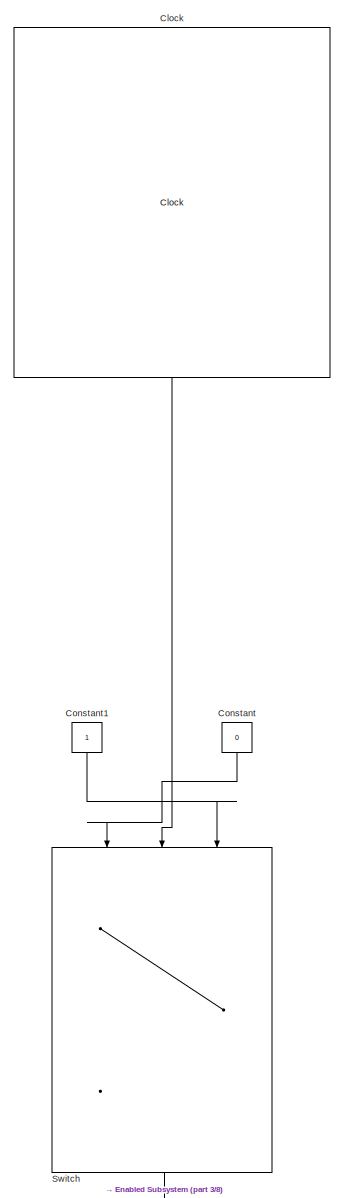
[diagram: root canvas - part 1/8, top left region]
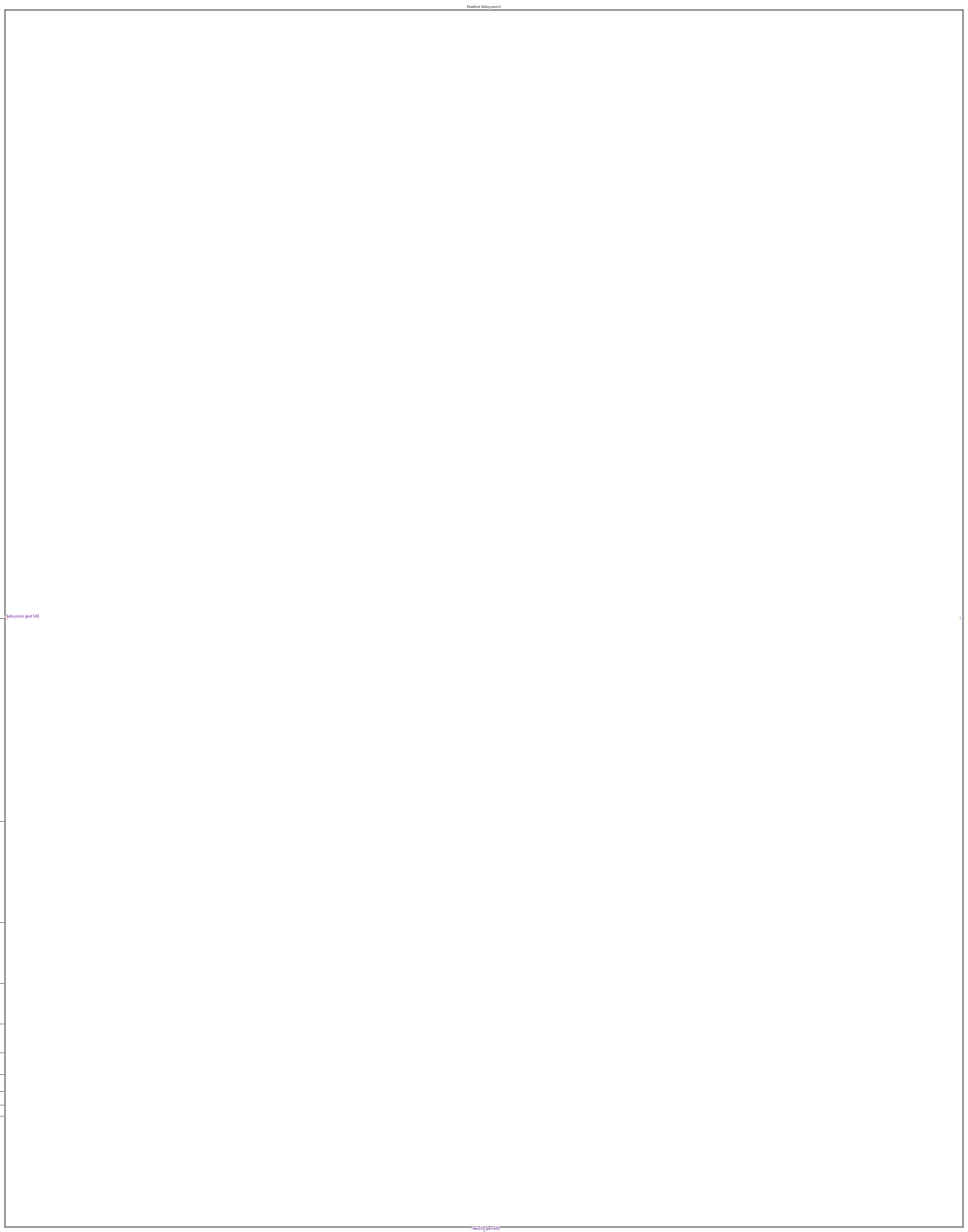
[diagram: root canvas - part 2/8, middle right region]
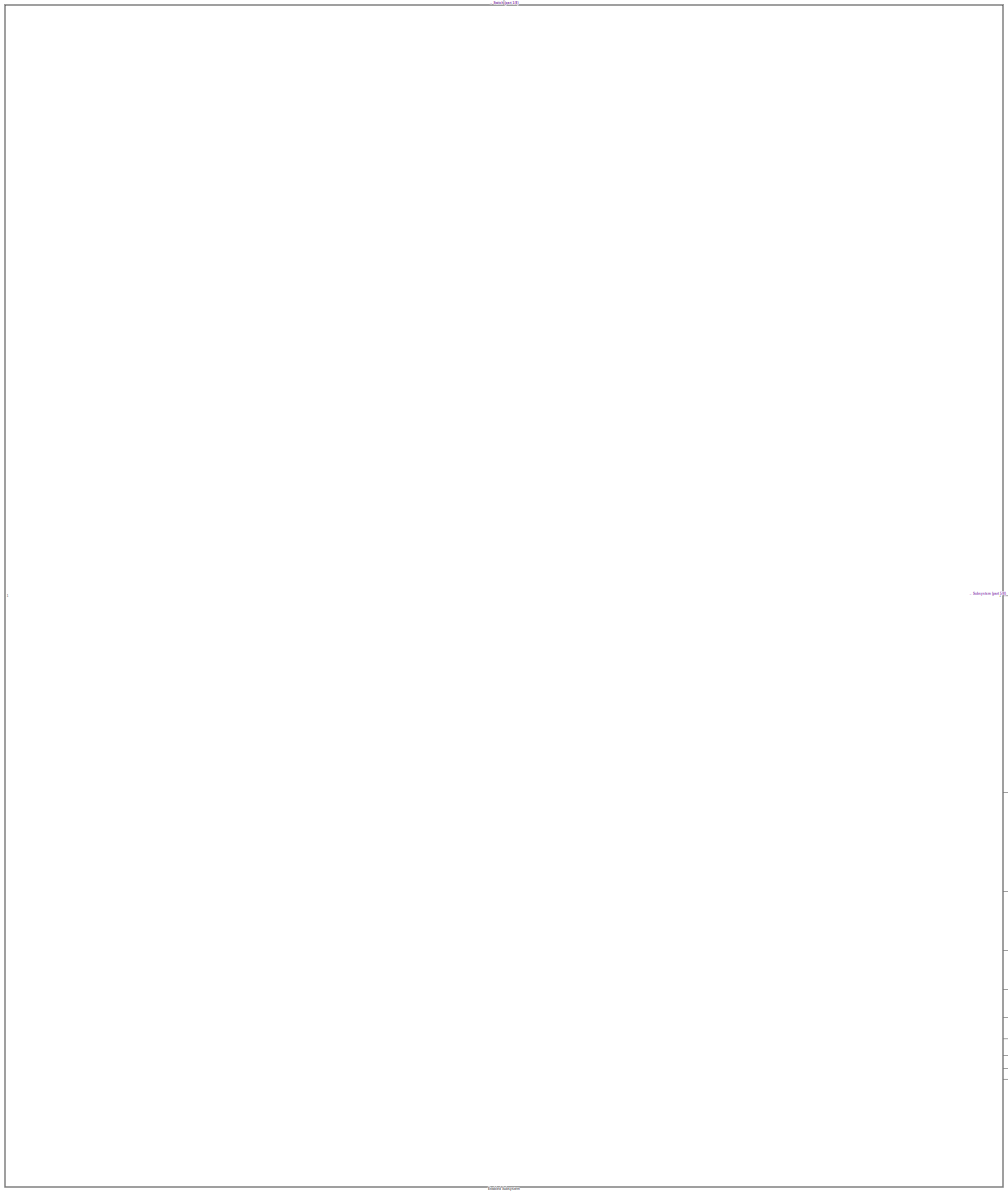
[diagram: root canvas - part 3/8, middle left region]
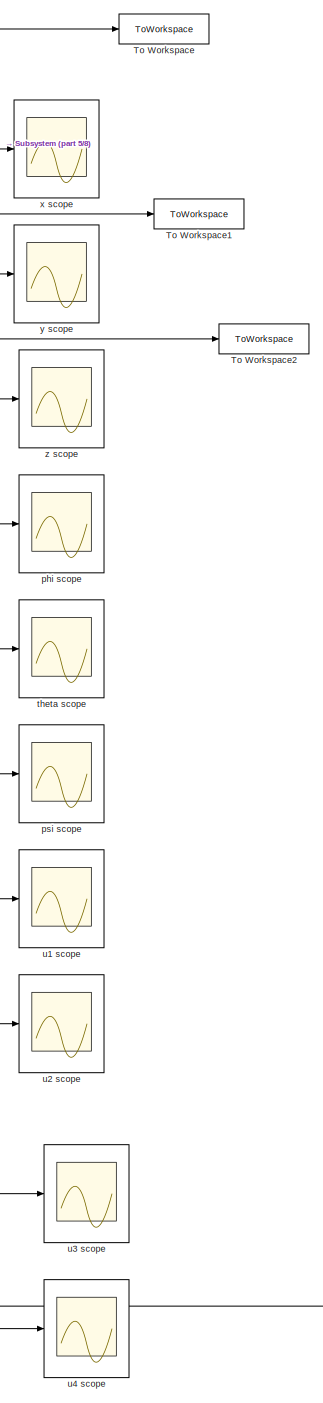
[diagram: root canvas - part 4/8, central region]
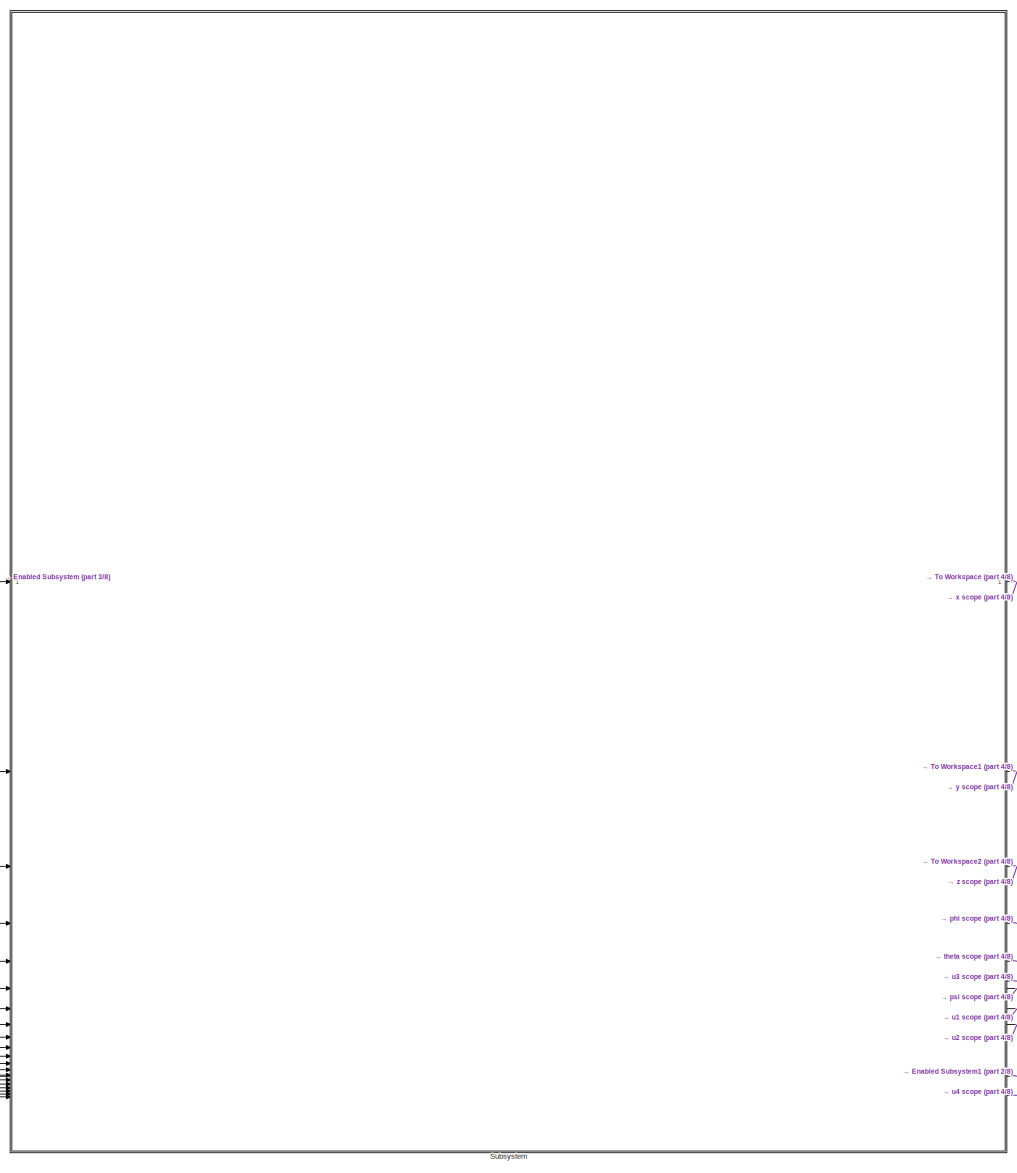
[diagram: root canvas - part 5/8, central region]
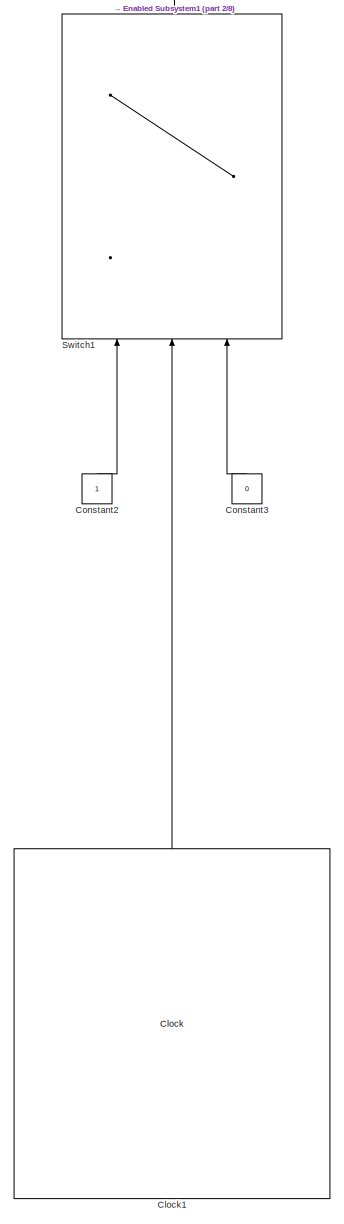
[diagram: root canvas - part 6/8, bottom right region]
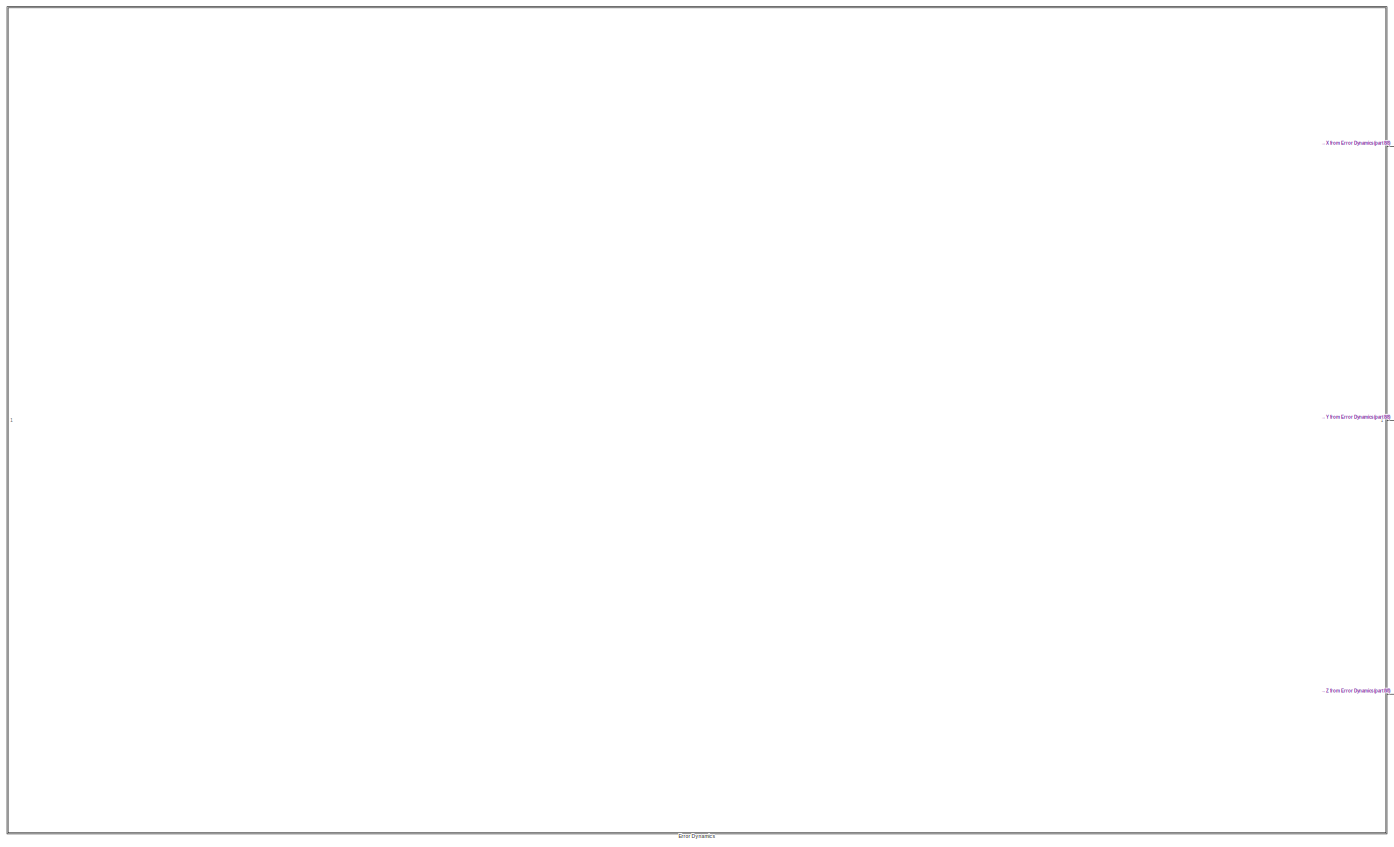
[diagram: root canvas - part 7/8, bottom left region]
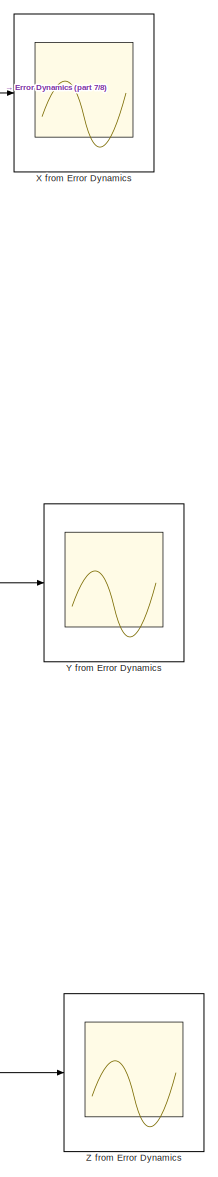
[diagram: root canvas - part 8/8, bottom center region]
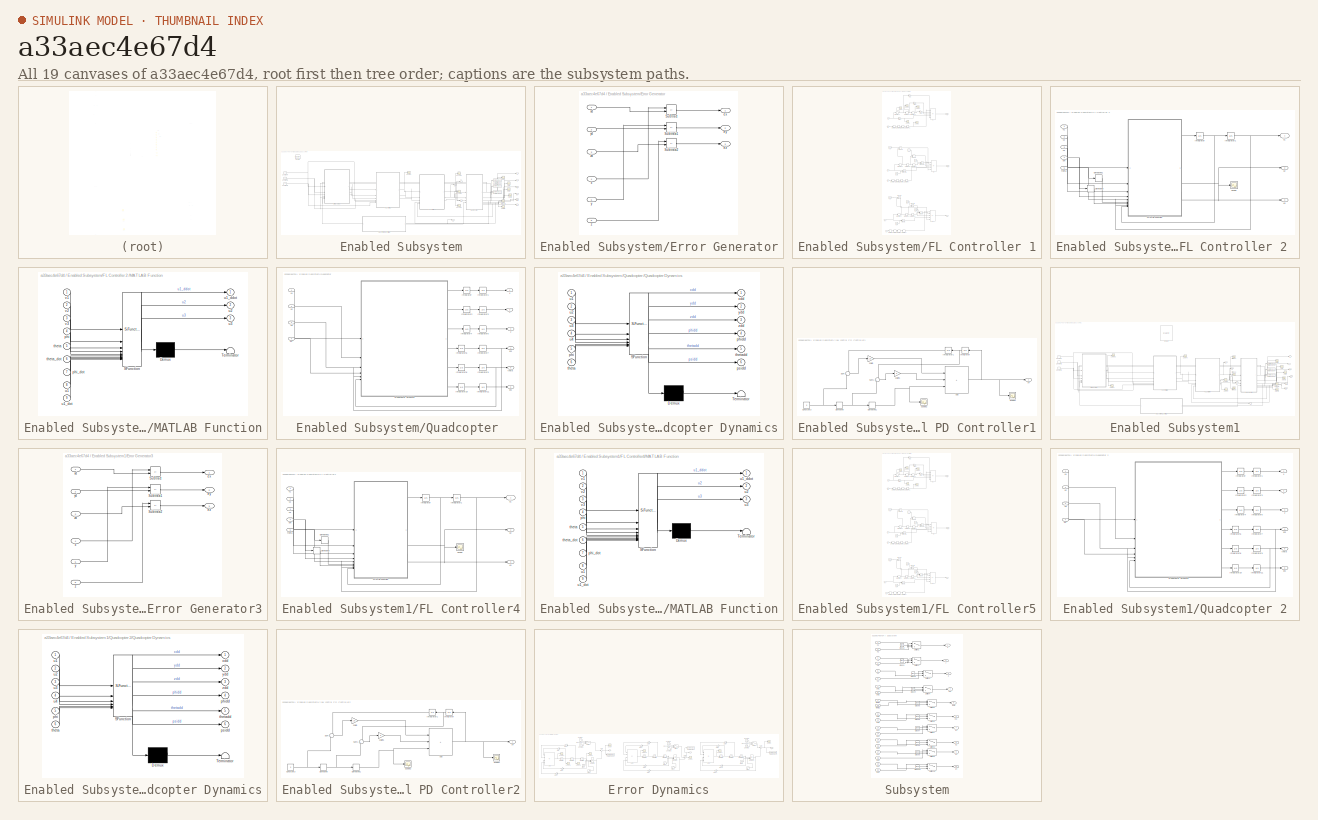
[diagram: thumbnail index - all 19 canvases of the model, root first then tree order]
MODEL slx_a33aec4e67d4
KIND model
CONFIG AbsTol = auto
CONFIG EnableMultiTasking = off
CONFIG FixedStep = 0.1
CONFIG MaxStep = auto
CONFIG MinStep = auto
CONFIG RelTol = 1
CONFIG SampleTimeConstraint = Unconstrained
CONFIG SolverName = ode1be
CONFIG StartTime = 0.0
CONFIG StopTime = 30
BLOCK [Clock] Clock
  NameLocation = left
BLOCK [Clock] Clock1
  NameLocation = right
BLOCK [Constant] Constant
  NameLocation = left
  Value = 0
BLOCK [Constant] Constant1
  NameLocation = left
BLOCK [Constant] Constant2
  NameLocation = right
BLOCK [Constant] Constant3
  NameLocation = right
  Value = 0
BLOCK [SubSystem] Enabled Subsystem
  TreatAsAtomicUnit = on
BLOCK [Constant] Enabled Subsystem/Constant4
  Value = 20
BLOCK [Constant] Enabled Subsystem/Constant5
  Value = -10
BLOCK [Constant] Enabled Subsystem/Constant6
  Value = 10
BLOCK [EnablePort] Enabled Subsystem/Enable
BLOCK [SubSystem] Enabled Subsystem/Error Generator
BLOCK [Sum] Enabled Subsystem/Error Generator/Subtract
  IconShape = rectangular
  Inputs = +-
BLOCK [Sum] Enabled Subsystem/Error Generator/Subtract1
  IconShape = rectangular
  Inputs = +-
BLOCK [Sum] Enabled Subsystem/Error Generator/Subtract2
  IconShape = rectangular
  Inputs = +-
BLOCK [Outport] Enabled Subsystem/Error Generator/ex
BLOCK [Outport] Enabled Subsystem/Error Generator/ey
  Port = 2
BLOCK [Outport] Enabled Subsystem/Error Generator/ez
  Port = 3
BLOCK [Inport] Enabled Subsystem/Error Generator/x
  Port = 4
BLOCK [Inport] Enabled Subsystem/Error Generator/xd
BLOCK [Inport] Enabled Subsystem/Error Generator/y
  Port = 5
BLOCK [Inport] Enabled Subsystem/Error Generator/yd
  Port = 2
BLOCK [Inport] Enabled Subsystem/Error Generator/z
  Port = 6
BLOCK [Inport] Enabled Subsystem/Error Generator/zd
  Port = 3
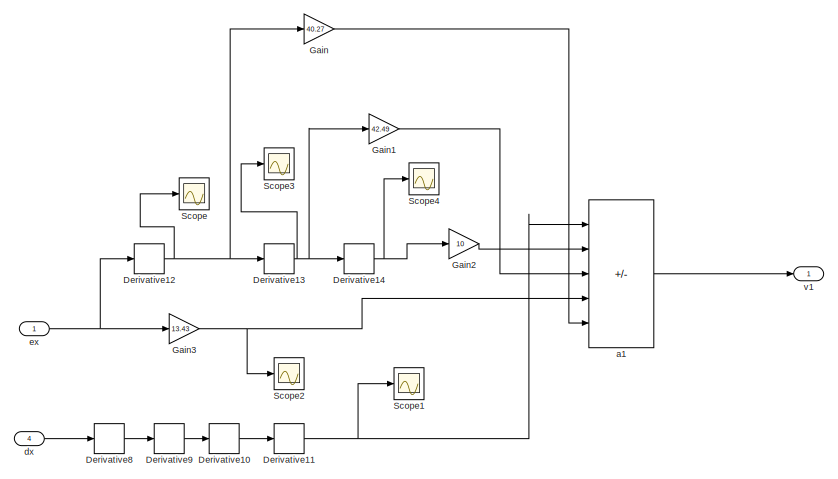
[diagram: Enabled Subsystem/FL Controller 1 - part 1/2, full width, top band]
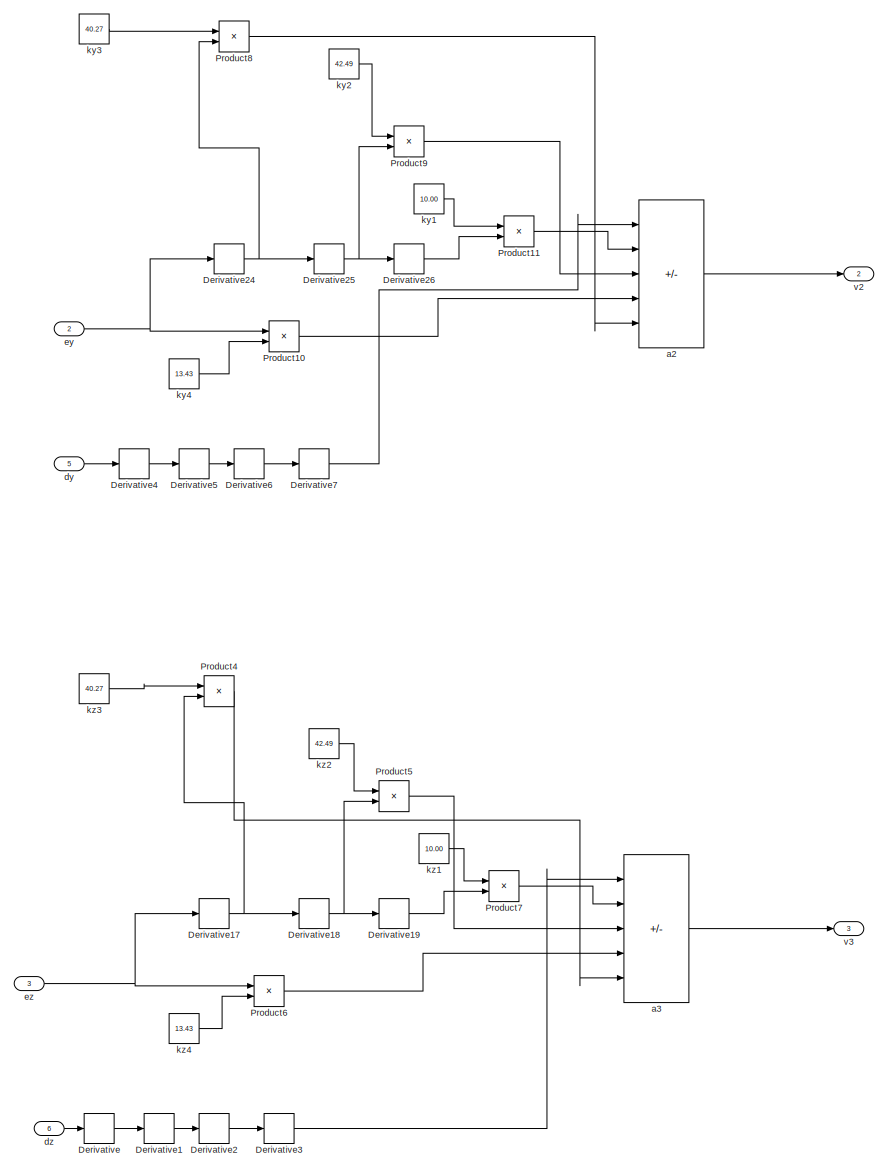
[diagram: Enabled Subsystem/FL Controller 1 - part 2/2, full width, bottom band]
BLOCK [SubSystem] Enabled Subsystem/FL Controller 1
BLOCK [Derivative] Enabled Subsystem/FL Controller 1/Derivative
BLOCK [Derivative] Enabled Subsystem/FL Controller 1/Derivative1
BLOCK [Derivative] Enabled Subsystem/FL Controller 1/Derivative10
BLOCK [Derivative] Enabled Subsystem/FL Controller 1/Derivative11
BLOCK [Derivative] Enabled Subsystem/FL Controller 1/Derivative12
BLOCK [Derivative] Enabled Subsystem/FL Controller 1/Derivative13
BLOCK [Derivative] Enabled Subsystem/FL Controller 1/Derivative14
BLOCK [Derivative] Enabled Subsystem/FL Controller 1/Derivative17
BLOCK [Derivative] Enabled Subsystem/FL Controller 1/Derivative18
BLOCK [Derivative] Enabled Subsystem/FL Controller 1/Derivative19
BLOCK [Derivative] Enabled Subsystem/FL Controller 1/Derivative2
BLOCK [Derivative] Enabled Subsystem/FL Controller 1/Derivative24
BLOCK [Derivative] Enabled Subsystem/FL Controller 1/Derivative25
BLOCK [Derivative] Enabled Subsystem/FL Controller 1/Derivative26
BLOCK [Derivative] Enabled Subsystem/FL Controller 1/Derivative3
BLOCK [Derivative] Enabled Subsystem/FL Controller 1/Derivative4
BLOCK [Derivative] Enabled Subsystem/FL Controller 1/Derivative5
BLOCK [Derivative] Enabled Subsystem/FL Controller 1/Derivative6
BLOCK [Derivative] Enabled Subsystem/FL Controller 1/Derivative7
BLOCK [Derivative] Enabled Subsystem/FL Controller 1/Derivative8
BLOCK [Derivative] Enabled Subsystem/FL Controller 1/Derivative9
BLOCK [Gain] Enabled Subsystem/FL Controller 1/Gain
  Gain = 40.27
BLOCK [Gain] Enabled Subsystem/FL Controller 1/Gain1
  Gain = 42.49
BLOCK [Gain] Enabled Subsystem/FL Controller 1/Gain2
  Gain = 10
BLOCK [Gain] Enabled Subsystem/FL Controller 1/Gain3
  Gain = 13.43
BLOCK [Product] Enabled Subsystem/FL Controller 1/Product10
BLOCK [Product] Enabled Subsystem/FL Controller 1/Product11
BLOCK [Product] Enabled Subsystem/FL Controller 1/Product4
BLOCK [Product] Enabled Subsystem/FL Controller 1/Product5
BLOCK [Product] Enabled Subsystem/FL Controller 1/Product6
BLOCK [Product] Enabled Subsystem/FL Controller 1/Product7
BLOCK [Product] Enabled Subsystem/FL Controller 1/Product8
BLOCK [Product] Enabled Subsystem/FL Controller 1/Product9
BLOCK [Scope] Enabled Subsystem/FL Controller 1/Scope
  Floating = off
  NumInputPorts = 1
  ScopeSpecificationString = Simulink.scopes.TimeScopeBlockCfg('CurrentConfiguration', extmgr.ConfigurationSet(extmgr.Configuration('Core','General UI',true),extmgr.Configuration('Core','Source UI',true),extmgr.Configuration('Sources','WiredSimulink',true,'DataLoggingVariableName','ScopeData1'),extmgr.Configuration('Visuals','Time Domain',true,'SerializedDisplays',{struct('MinYLimReal','-25.99473','MaxYLimReal','233.9526','YL...<+1377ch>
BLOCK [Scope] Enabled Subsystem/FL Controller 1/Scope1
  Floating = off
  NumInputPorts = 1
  ScopeSpecificationString = Simulink.scopes.TimeScopeBlockCfg('CurrentConfiguration', extmgr.ConfigurationSet(extmgr.Configuration('Core','General UI',true),extmgr.Configuration('Core','Source UI',true),extmgr.Configuration('Sources','WiredSimulink',true,'DataLoggingVariableName','ScopeData2'),extmgr.Configuration('Visuals','Time Domain',true,'SerializedDisplays',{struct('MinYLimReal','-750000.00000','MaxYLimReal','750000.00...<+1409ch>
BLOCK [Scope] Enabled Subsystem/FL Controller 1/Scope2
  Floating = off
  NumInputPorts = 1
  ScopeSpecificationString = Simulink.scopes.TimeScopeBlockCfg('CurrentConfiguration', extmgr.ConfigurationSet(extmgr.Configuration('Core','General UI',true),extmgr.Configuration('Core','Source UI',true),extmgr.Configuration('Sources','WiredSimulink',true,'DataLoggingVariableName','ScopeData8'),extmgr.Configuration('Visuals','Time Domain',true,'SerializedDisplays',{struct('MinYLimReal','-528.80569','MaxYLimReal','3416.25125',...<+1382ch>
BLOCK [Scope] Enabled Subsystem/FL Controller 1/Scope3
  Floating = off
  NumInputPorts = 1
  ScopeSpecificationString = Simulink.scopes.TimeScopeBlockCfg('CurrentConfiguration', extmgr.ConfigurationSet(extmgr.Configuration('Core','General UI',true),extmgr.Configuration('Core','Source UI',true),extmgr.Configuration('Sources','WiredSimulink',true,'DataLoggingVariableName','ScopeData9'),extmgr.Configuration('Visuals','Time Domain',true,'SerializedDisplays',{struct('MinYLimReal','-2493.31716','MaxYLimReal','2499.25746'...<+1393ch>
BLOCK [Scope] Enabled Subsystem/FL Controller 1/Scope4
  Floating = off
  NumInputPorts = 1
  ScopeSpecificationString = Simulink.scopes.TimeScopeBlockCfg('CurrentConfiguration', extmgr.ConfigurationSet(extmgr.Configuration('Core','General UI',true),extmgr.Configuration('Core','Source UI',true),extmgr.Configuration('Sources','WiredSimulink',true,'DataLoggingVariableName','ScopeData10'),extmgr.Configuration('Visuals','Time Domain',true,'SerializedDisplays',{struct('MinYLimReal','-47433.17157','MaxYLimReal','27492.574...<+1402ch>
BLOCK [Sum] Enabled Subsystem/FL Controller 1/a1
  IconShape = rectangular
  Inputs = +----
BLOCK [Sum] Enabled Subsystem/FL Controller 1/a2
  IconShape = rectangular
  Inputs = +----
BLOCK [Sum] Enabled Subsystem/FL Controller 1/a3
  IconShape = rectangular
  Inputs = +----
BLOCK [Inport] Enabled Subsystem/FL Controller 1/dx
  Port = 4
BLOCK [Inport] Enabled Subsystem/FL Controller 1/dy
  Port = 5
BLOCK [Inport] Enabled Subsystem/FL Controller 1/dz
  Port = 6
BLOCK [Inport] Enabled Subsystem/FL Controller 1/ex
BLOCK [Inport] Enabled Subsystem/FL Controller 1/ey
  Port = 2
BLOCK [Inport] Enabled Subsystem/FL Controller 1/ez
  NameLocation = top
  Port = 3
BLOCK [Constant] Enabled Subsystem/FL Controller 1/ky1
  Value = 10.00
BLOCK [Constant] Enabled Subsystem/FL Controller 1/ky2
  Value = 42.49
BLOCK [Constant] Enabled Subsystem/FL Controller 1/ky3
  Value = 40.27
BLOCK [Constant] Enabled Subsystem/FL Controller 1/ky4
  Value = 13.43
BLOCK [Constant] Enabled Subsystem/FL Controller 1/kz1
  Value = 10.00
BLOCK [Constant] Enabled Subsystem/FL Controller 1/kz2
  Value = 42.49
BLOCK [Constant] Enabled Subsystem/FL Controller 1/kz3
  Value = 40.27
BLOCK [Constant] Enabled Subsystem/FL Controller 1/kz4
  Value = 13.43
BLOCK [Outport] Enabled Subsystem/FL Controller 1/v1
BLOCK [Outport] Enabled Subsystem/FL Controller 1/v2
  Port = 2
BLOCK [Outport] Enabled Subsystem/FL Controller 1/v3
  Port = 3
BLOCK [SubSystem] Enabled Subsystem/FL Controller 2 
BLOCK [Derivative] Enabled Subsystem/FL Controller 2 /Derivative
BLOCK [Derivative] Enabled Subsystem/FL Controller 2 /Derivative1
BLOCK [Integrator] Enabled Subsystem/FL Controller 2 /Integrator
BLOCK [Integrator] Enabled Subsystem/FL Controller 2 /Integrator1
  InitialCondition = 9.81
  LowerSaturationLimit = 0
  UpperSaturationLimit = 15
BLOCK [SubSystem] Enabled Subsystem/FL Controller 2 /MATLAB Function
  ErrorFcn = Stateflow.Translate.translate
  LibrarySourceBlock = simulink/User-Defined\nFunctions/MATLAB Function
  PermitHierarchicalResolution = ExplicitOnly
  SFBlockType = MATLAB Function
  TreatAsAtomicUnit = on
BLOCK [Demux] Enabled Subsystem/FL Controller 2 /MATLAB Function/ Demux 
  Outputs = 1
BLOCK [S-Function] Enabled Subsystem/FL Controller 2 /MATLAB Function/ SFunction 
  EnableBusSupport = on
  FunctionName = sf_sfun
  PortCounts = [9 4]
  SFcnIsStateOwnerBlock = off
  SFunctionDeploymentMode = off
  Tag = Stateflow S-Function 7
BLOCK [Terminator] Enabled Subsystem/FL Controller 2 /MATLAB Function/ Terminator 
BLOCK [Inport] Enabled Subsystem/FL Controller 2 /MATLAB Function/phi
  Port = 4
BLOCK [Inport] Enabled Subsystem/FL Controller 2 /MATLAB Function/phi_dot
  Port = 7
BLOCK [Inport] Enabled Subsystem/FL Controller 2 /MATLAB Function/theta
  Port = 5
BLOCK [Inport] Enabled Subsystem/FL Controller 2 /MATLAB Function/theta_dot
  Port = 6
BLOCK [Inport] Enabled Subsystem/FL Controller 2 /MATLAB Function/u1
  Port = 8
BLOCK [Outport] Enabled Subsystem/FL Controller 2 /MATLAB Function/u1_ddot
BLOCK [Inport] Enabled Subsystem/FL Controller 2 /MATLAB Function/u1_dot
  Port = 9
BLOCK [Outport] Enabled Subsystem/FL Controller 2 /MATLAB Function/u2
  Port = 2
BLOCK [Outport] Enabled Subsystem/FL Controller 2 /MATLAB Function/u3
  Port = 3
BLOCK [Inport] Enabled Subsystem/FL Controller 2 /MATLAB Function/v1
BLOCK [Inport] Enabled Subsystem/FL Controller 2 /MATLAB Function/v2
  Port = 2
BLOCK [Inport] Enabled Subsystem/FL Controller 2 /MATLAB Function/v3
  Port = 3
BLOCK [Scope] Enabled Subsystem/FL Controller 2 /Scope
  Floating = off
  NumInputPorts = 1
  ScopeSpecificationString = Simulink.scopes.TimeScopeBlockCfg('CurrentConfiguration', extmgr.ConfigurationSet(extmgr.Configuration('Core','General UI',true),extmgr.Configuration('Core','Source UI',true),extmgr.Configuration('Sources','WiredSimulink',true,'DataLoggingVariableName','ScopeData11'),extmgr.Configuration('Visuals','Time Domain',true,'SerializedDisplays',{struct('MinYLimReal','-4353.60919','MaxYLimReal','1295.84211...<+1400ch>
BLOCK [Inport] Enabled Subsystem/FL Controller 2 /phi
  Port = 4
BLOCK [Inport] Enabled Subsystem/FL Controller 2 /theta
  Port = 5
BLOCK [Outport] Enabled Subsystem/FL Controller 2 /u1
BLOCK [Outport] Enabled Subsystem/FL Controller 2 /u2
  Port = 2
BLOCK [Outport] Enabled Subsystem/FL Controller 2 /u3
  Port = 3
BLOCK [Inport] Enabled Subsystem/FL Controller 2 /v1
BLOCK [Inport] Enabled Subsystem/FL Controller 2 /v2
  Port = 2
BLOCK [Inport] Enabled Subsystem/FL Controller 2 /v3
  Port = 3
BLOCK [SubSystem] Enabled Subsystem/Quadcopter 
BLOCK [Integrator] Enabled Subsystem/Quadcopter /Integrator
BLOCK [Integrator] Enabled Subsystem/Quadcopter /Integrator1
  InitialCondition = 10
BLOCK [Integrator] Enabled Subsystem/Quadcopter /Integrator10
BLOCK [Integrator] Enabled Subsystem/Quadcopter /Integrator11
  InitialCondition = 0.5235
BLOCK [Integrator] Enabled Subsystem/Quadcopter /Integrator2
BLOCK [Integrator] Enabled Subsystem/Quadcopter /Integrator3
  InitialCondition = 10
BLOCK [Integrator] Enabled Subsystem/Quadcopter /Integrator4
BLOCK [Integrator] Enabled Subsystem/Quadcopter /Integrator5
  InitialCondition = 20
BLOCK [Integrator] Enabled Subsystem/Quadcopter /Integrator6
  LowerSaturationLimit = -0.1
  UpperSaturationLimit = 0.1
BLOCK [Integrator] Enabled Subsystem/Quadcopter /Integrator7
  InitialCondition = 0.5325
BLOCK [Integrator] Enabled Subsystem/Quadcopter /Integrator8
  LowerSaturationLimit = -0.1
  UpperSaturationLimit = 0.1
BLOCK [Integrator] Enabled Subsystem/Quadcopter /Integrator9
  InitialCondition = 0.5325
BLOCK [SubSystem] Enabled Subsystem/Quadcopter /Quadcopter Dynamics
  ErrorFcn = Stateflow.Translate.translate
  LibrarySourceBlock = simulink/User-Defined\nFunctions/MATLAB Function
  PermitHierarchicalResolution = ExplicitOnly
  SFBlockType = MATLAB Function
  TreatAsAtomicUnit = on
BLOCK [Demux] Enabled Subsystem/Quadcopter /Quadcopter Dynamics/ Demux 
  Outputs = 1
BLOCK [S-Function] Enabled Subsystem/Quadcopter /Quadcopter Dynamics/ SFunction 
  EnableBusSupport = on
  FunctionName = sf_sfun
  PortCounts = [6 7]
  SFcnIsStateOwnerBlock = off
  SFunctionDeploymentMode = off
  Tag = Stateflow S-Function 8
BLOCK [Terminator] Enabled Subsystem/Quadcopter /Quadcopter Dynamics/ Terminator 
BLOCK [Inport] Enabled Subsystem/Quadcopter /Quadcopter Dynamics/phi
  Port = 5
BLOCK [Outport] Enabled Subsystem/Quadcopter /Quadcopter Dynamics/phidd
  Port = 4
BLOCK [Outport] Enabled Subsystem/Quadcopter /Quadcopter Dynamics/psidd
  Port = 6
BLOCK [Inport] Enabled Subsystem/Quadcopter /Quadcopter Dynamics/theta
  Port = 6
BLOCK [Outport] Enabled Subsystem/Quadcopter /Quadcopter Dynamics/thetadd
  Port = 5
BLOCK [Inport] Enabled Subsystem/Quadcopter /Quadcopter Dynamics/u1
BLOCK [Inport] Enabled Subsystem/Quadcopter /Quadcopter Dynamics/u2
  Port = 2
BLOCK [Inport] Enabled Subsystem/Quadcopter /Quadcopter Dynamics/u3
  Port = 3
BLOCK [Inport] Enabled Subsystem/Quadcopter /Quadcopter Dynamics/u4
  Port = 4
BLOCK [Outport] Enabled Subsystem/Quadcopter /Quadcopter Dynamics/xdd
BLOCK [Outport] Enabled Subsystem/Quadcopter /Quadcopter Dynamics/ydd
  Port = 2
BLOCK [Outport] Enabled Subsystem/Quadcopter /Quadcopter Dynamics/zdd
  Port = 3
BLOCK [Outport] Enabled Subsystem/Quadcopter /phi
  Port = 4
BLOCK [Outport] Enabled Subsystem/Quadcopter /psi
  Port = 6
BLOCK [Outport] Enabled Subsystem/Quadcopter /theta
  Port = 5
BLOCK [Inport] Enabled Subsystem/Quadcopter /u1
BLOCK [Inport] Enabled Subsystem/Quadcopter /u2
  Port = 2
BLOCK [Inport] Enabled Subsystem/Quadcopter /u3
  Port = 3
BLOCK [Inport] Enabled Subsystem/Quadcopter /u4
  Port = 4
BLOCK [Outport] Enabled Subsystem/Quadcopter /x
BLOCK [Outport] Enabled Subsystem/Quadcopter /y
  Port = 2
BLOCK [Outport] Enabled Subsystem/Quadcopter /z
  Port = 3
BLOCK [Scope] Enabled Subsystem/Scope1
  Floating = off
  NumInputPorts = 1
  ScopeSpecificationString = Simulink.scopes.TimeScopeBlockCfg('CurrentConfiguration', extmgr.ConfigurationSet(extmgr.Configuration('Core','General UI',true),extmgr.Configuration('Core','Source UI',true),extmgr.Configuration('Sources','WiredSimulink',true,'DataLoggingVariableName','ScopeData36'),extmgr.Configuration('Visuals','Time Domain',true,'SerializedDisplays',{struct('MinYLimReal','-1000947.85584','MaxYLimReal','1103409...<+1422ch>
BLOCK [ToWorkspace] Enabled Subsystem/To Workspace3
  FixptAsFi = on
  MaxDataPoints = inf
  SampleTime = -1
  SaveFormat = Timeseries
  VariableName = x1
BLOCK [ToWorkspace] Enabled Subsystem/To Workspace4
  FixptAsFi = on
  MaxDataPoints = inf
  SampleTime = -1
  SaveFormat = Timeseries
  VariableName = y1
BLOCK [ToWorkspace] Enabled Subsystem/To Workspace5
  FixptAsFi = on
  MaxDataPoints = inf
  SampleTime = -1
  SaveFormat = Timeseries
  VariableName = z1
BLOCK [SubSystem] Enabled Subsystem/Yaw control PD Controller1
BLOCK [Gain] Enabled Subsystem/Yaw control PD Controller1/1Gain1
  Gain = 5
BLOCK [Gain] Enabled Subsystem/Yaw control PD Controller1/2Gain
  Gain = 10
BLOCK [Sum] Enabled Subsystem/Yaw control PD Controller1/Add
  IconShape = rectangular
  Inputs = +++
BLOCK [Constant] Enabled Subsystem/Yaw control PD Controller1/Constant3
  Value = 0
BLOCK [Derivative] Enabled Subsystem/Yaw control PD Controller1/Derivative
BLOCK [Derivative] Enabled Subsystem/Yaw control PD Controller1/Derivative1
BLOCK [Integrator] Enabled Subsystem/Yaw control PD Controller1/Integrator
  NameLocation = top
BLOCK [Integrator] Enabled Subsystem/Yaw control PD Controller1/Integrator1
  InitialCondition = 0.5235
  NameLocation = top
BLOCK [Scope] Enabled Subsystem/Yaw control PD Controller1/Scope1
  Floating = off
  NumInputPorts = 1
  ScopeSpecificationString = Simulink.scopes.TimeScopeBlockCfg('CurrentConfiguration', extmgr.ConfigurationSet(extmgr.Configuration('Core','General UI',true),extmgr.Configuration('Core','Source UI',true),extmgr.Configuration('Sources','WiredSimulink',true,'DataLoggingVariableName','ScopeData1'),extmgr.Configuration('Visuals','Time Domain',true,'SerializedDisplays',{struct('MinYLimReal','-5.97743','MaxYLimReal','1.4469','YLabe...<+1393ch>
BLOCK [Scope] Enabled Subsystem/Yaw control PD Controller1/Scope2
  Floating = off
  NumInputPorts = 1
  ScopeSpecificationString = Simulink.scopes.TimeScopeBlockCfg('CurrentConfiguration', extmgr.ConfigurationSet(extmgr.Configuration('Core','General UI',true),extmgr.Configuration('Core','Source UI',true),extmgr.Configuration('Sources','WiredSimulink',true,'DataLoggingVariableName','ScopeData1'),extmgr.Configuration('Visuals','Time Domain',true,'SerializedDisplays',{struct('MinYLimReal','-8229522481.41766','MaxYLimReal','74065...<+1469ch>
BLOCK [Sum] Enabled Subsystem/Yaw control PD Controller1/Sum
  Inputs = -+
BLOCK [Sum] Enabled Subsystem/Yaw control PD Controller1/Sum1
  Inputs = -+
BLOCK [Outport] Enabled Subsystem/Yaw control PD Controller1/u4
BLOCK [Outport] Enabled Subsystem/phi
  Port = 4
BLOCK [Scope] Enabled Subsystem/phi obt1
  Floating = off
  NumInputPorts = 1
  ScopeSpecificationString = Simulink.scopes.TimeScopeBlockCfg('CurrentConfiguration', extmgr.ConfigurationSet(extmgr.Configuration('Core','General UI',true),extmgr.Configuration('Core','Source UI',true),extmgr.Configuration('Sources','WiredSimulink',true,'DataLoggingVariableName','ScopeData41'),extmgr.Configuration('Visuals','Time Domain',true,'SerializedDisplays',{struct('MinYLimReal','-117.36908','MaxYLimReal','14.03202','...<+1385ch>
BLOCK [Outport] Enabled Subsystem/psi
  Port = 6
BLOCK [Scope] Enabled Subsystem/psi obt1
  Floating = off
  NumInputPorts = 1
  ScopeSpecificationString = Simulink.scopes.TimeScopeBlockCfg('CurrentConfiguration', extmgr.ConfigurationSet(extmgr.Configuration('Core','General UI',true),extmgr.Configuration('Core','Source UI',true),extmgr.Configuration('Sources','WiredSimulink',true,'DataLoggingVariableName','ScopeData42'),extmgr.Configuration('Visuals','Time Domain',true,'SerializedDisplays',{struct('MinYLimReal','-0.07031','MaxYLimReal','0.58948','YLa...<+1373ch>
BLOCK [Outport] Enabled Subsystem/theta
  Port = 5
BLOCK [Scope] Enabled Subsystem/theta obt1
  Floating = off
  NumInputPorts = 1
  ScopeSpecificationString = Simulink.scopes.TimeScopeBlockCfg('CurrentConfiguration', extmgr.ConfigurationSet(extmgr.Configuration('Core','General UI',true),extmgr.Configuration('Core','Source UI',true),extmgr.Configuration('Sources','WiredSimulink',true,'DataLoggingVariableName','ScopeData43'),extmgr.Configuration('Visuals','Time Domain',true,'SerializedDisplays',{struct('MinYLimReal','-231.08478','MaxYLimReal','26.35771','...<+1385ch>
BLOCK [Outport] Enabled Subsystem/u1
  Port = 7
BLOCK [Scope] Enabled Subsystem/u1 scope
  Floating = off
  NumInputPorts = 1
  ScopeSpecificationString = Simulink.scopes.TimeScopeBlockCfg('CurrentConfiguration', extmgr.ConfigurationSet(extmgr.Configuration('Core','General UI',true),extmgr.Configuration('Core','Source UI',true),extmgr.Configuration('Sources','WiredSimulink',true,'DataLoggingVariableName','ScopeData33'),extmgr.Configuration('Visuals','Time Domain',true,'SerializedDisplays',{struct('MinYLimReal','-30.96414','MaxYLimReal','251.37274','...<+1385ch>
BLOCK [Outport] Enabled Subsystem/u2
  Port = 8
BLOCK [Scope] Enabled Subsystem/u2 scope
  Floating = off
  NumInputPorts = 1
  ScopeSpecificationString = Simulink.scopes.TimeScopeBlockCfg('CurrentConfiguration', extmgr.ConfigurationSet(extmgr.Configuration('Core','General UI',true),extmgr.Configuration('Core','Source UI',true),extmgr.Configuration('Sources','WiredSimulink',true,'DataLoggingVariableName','ScopeData34'),extmgr.Configuration('Visuals','Time Domain',true,'SerializedDisplays',{struct('MinYLimReal','-408777.33602','MaxYLimReal','249060.0...<+1414ch>
BLOCK [Outport] Enabled Subsystem/u3
  Port = 9
BLOCK [Scope] Enabled Subsystem/u3 scope
  Floating = off
  NumInputPorts = 1
  ScopeSpecificationString = Simulink.scopes.TimeScopeBlockCfg('CurrentConfiguration', extmgr.ConfigurationSet(extmgr.Configuration('Core','General UI',true),extmgr.Configuration('Core','Source UI',true),extmgr.Configuration('Sources','WiredSimulink',true,'DataLoggingVariableName','ScopeData35'),extmgr.Configuration('Visuals','Time Domain',true,'SerializedDisplays',{struct('MinYLimReal','-3633645.38573','MaxYLimReal','444975....<+1420ch>
BLOCK [Outport] Enabled Subsystem/u4
  Port = 10
BLOCK [Outport] Enabled Subsystem/x
BLOCK [Scope] Enabled Subsystem/x obt1
  Floating = off
  NumInputPorts = 1
  ScopeSpecificationString = Simulink.scopes.TimeScopeBlockCfg('CurrentConfiguration', extmgr.ConfigurationSet(extmgr.Configuration('Core','General UI',true),extmgr.Configuration('Core','Source UI',true),extmgr.Configuration('Sources','WiredSimulink',true,'DataLoggingVariableName','ScopeData44'),extmgr.Configuration('Visuals','Time Domain',true,'SerializedDisplays',{struct('MinYLimReal','8.7467','MaxYLimReal','21.27972','YLab...<+1401ch>
BLOCK [Outport] Enabled Subsystem/y
  Port = 2
BLOCK [Scope] Enabled Subsystem/y obt1
  Floating = off
  NumInputPorts = 1
  ScopeSpecificationString = Simulink.scopes.TimeScopeBlockCfg('CurrentConfiguration', extmgr.ConfigurationSet(extmgr.Configuration('Core','General UI',true),extmgr.Configuration('Core','Source UI',true),extmgr.Configuration('Sources','WiredSimulink',true,'DataLoggingVariableName','ScopeData45'),extmgr.Configuration('Visuals','Time Domain',true,'SerializedDisplays',{struct('MinYLimReal','-29.1456','MaxYLimReal','161.83589','Y...<+1410ch>
BLOCK [Outport] Enabled Subsystem/z
  Port = 3
BLOCK [Scope] Enabled Subsystem/z obt1
  Floating = off
  NumInputPorts = 1
  ScopeSpecificationString = Simulink.scopes.TimeScopeBlockCfg('CurrentConfiguration', extmgr.ConfigurationSet(extmgr.Configuration('Core','General UI',true),extmgr.Configuration('Core','Source UI',true),extmgr.Configuration('Sources','WiredSimulink',true,'DataLoggingVariableName','ScopeData46'),extmgr.Configuration('Visuals','Time Domain',true,'SerializedDisplays',{struct('MinYLimReal','-124.22877','MaxYLimReal','36.02542','...<+1418ch>
BLOCK [SubSystem] Enabled Subsystem1
  NameLocation = top
  TreatAsAtomicUnit = on
BLOCK [Constant] Enabled Subsystem1/Constant7
  Value = 0
BLOCK [Constant] Enabled Subsystem1/Constant8
  Value = 0
BLOCK [Constant] Enabled Subsystem1/Constant9
  Value = 0
BLOCK [EnablePort] Enabled Subsystem1/Enable
BLOCK [SubSystem] Enabled Subsystem1/Error Generator3
BLOCK [Sum] Enabled Subsystem1/Error Generator3/Subtract
  IconShape = rectangular
  Inputs = +-
BLOCK [Sum] Enabled Subsystem1/Error Generator3/Subtract1
  IconShape = rectangular
  Inputs = +-
BLOCK [Sum] Enabled Subsystem1/Error Generator3/Subtract2
  IconShape = rectangular
  Inputs = +-
BLOCK [Outport] Enabled Subsystem1/Error Generator3/ex
BLOCK [Outport] Enabled Subsystem1/Error Generator3/ey
  Port = 2
BLOCK [Outport] Enabled Subsystem1/Error Generator3/ez
  Port = 3
BLOCK [Inport] Enabled Subsystem1/Error Generator3/x
  Port = 4
BLOCK [Inport] Enabled Subsystem1/Error Generator3/xd
BLOCK [Inport] Enabled Subsystem1/Error Generator3/y
  Port = 5
BLOCK [Inport] Enabled Subsystem1/Error Generator3/yd
  Port = 2
BLOCK [Inport] Enabled Subsystem1/Error Generator3/z
  Port = 6
BLOCK [Inport] Enabled Subsystem1/Error Generator3/zd
  Port = 3
BLOCK [SubSystem] Enabled Subsystem1/FL Controller4
BLOCK [Derivative] Enabled Subsystem1/FL Controller4/Derivative
BLOCK [Derivative] Enabled Subsystem1/FL Controller4/Derivative1
BLOCK [Integrator] Enabled Subsystem1/FL Controller4/Integrator
BLOCK [Integrator] Enabled Subsystem1/FL Controller4/Integrator1
  InitialCondition = 9.81
  LowerSaturationLimit = 0
  UpperSaturationLimit = 15
BLOCK [SubSystem] Enabled Subsystem1/FL Controller4/MATLAB Function
  ErrorFcn = Stateflow.Translate.translate
  LibrarySourceBlock = simulink/User-Defined\nFunctions/MATLAB Function
  PermitHierarchicalResolution = ExplicitOnly
  SFBlockType = MATLAB Function
  TreatAsAtomicUnit = on
BLOCK [Demux] Enabled Subsystem1/FL Controller4/MATLAB Function/ Demux 
  Outputs = 1
BLOCK [S-Function] Enabled Subsystem1/FL Controller4/MATLAB Function/ SFunction 
  EnableBusSupport = on
  FunctionName = sf_sfun
  PortCounts = [9 4]
  SFcnIsStateOwnerBlock = off
  SFunctionDeploymentMode = off
  Tag = Stateflow S-Function 9
BLOCK [Terminator] Enabled Subsystem1/FL Controller4/MATLAB Function/ Terminator 
BLOCK [Inport] Enabled Subsystem1/FL Controller4/MATLAB Function/phi
  Port = 4
BLOCK [Inport] Enabled Subsystem1/FL Controller4/MATLAB Function/phi_dot
  Port = 7
BLOCK [Inport] Enabled Subsystem1/FL Controller4/MATLAB Function/theta
  Port = 5
BLOCK [Inport] Enabled Subsystem1/FL Controller4/MATLAB Function/theta_dot
  Port = 6
BLOCK [Inport] Enabled Subsystem1/FL Controller4/MATLAB Function/u1
  Port = 8
BLOCK [Outport] Enabled Subsystem1/FL Controller4/MATLAB Function/u1_ddot
BLOCK [Inport] Enabled Subsystem1/FL Controller4/MATLAB Function/u1_dot
  Port = 9
BLOCK [Outport] Enabled Subsystem1/FL Controller4/MATLAB Function/u2
  Port = 2
BLOCK [Outport] Enabled Subsystem1/FL Controller4/MATLAB Function/u3
  Port = 3
BLOCK [Inport] Enabled Subsystem1/FL Controller4/MATLAB Function/v1
BLOCK [Inport] Enabled Subsystem1/FL Controller4/MATLAB Function/v2
  Port = 2
BLOCK [Inport] Enabled Subsystem1/FL Controller4/MATLAB Function/v3
  Port = 3
BLOCK [Scope] Enabled Subsystem1/FL Controller4/Scope
  Floating = off
  NumInputPorts = 1
  ScopeSpecificationString = Simulink.scopes.TimeScopeBlockCfg('CurrentConfiguration', extmgr.ConfigurationSet(extmgr.Configuration('Core','General UI',true),extmgr.Configuration('Core','Source UI',true),extmgr.Configuration('Sources','WiredSimulink',true,'DataLoggingVariableName','ScopeData11'),extmgr.Configuration('Visuals','Time Domain',true,'SerializedDisplays',{struct('MinYLimReal','-4353.60919','MaxYLimReal','1295.84211...<+1400ch>
BLOCK [Inport] Enabled Subsystem1/FL Controller4/phi
  Port = 4
BLOCK [Inport] Enabled Subsystem1/FL Controller4/theta
  Port = 5
BLOCK [Outport] Enabled Subsystem1/FL Controller4/u1
BLOCK [Outport] Enabled Subsystem1/FL Controller4/u2
  Port = 2
BLOCK [Outport] Enabled Subsystem1/FL Controller4/u3
  Port = 3
BLOCK [Inport] Enabled Subsystem1/FL Controller4/v1
BLOCK [Inport] Enabled Subsystem1/FL Controller4/v2
  Port = 2
BLOCK [Inport] Enabled Subsystem1/FL Controller4/v3
  Port = 3
BLOCK [SubSystem] Enabled Subsystem1/FL Controller5
BLOCK [Derivative] Enabled Subsystem1/FL Controller5/Derivative
BLOCK [Derivative] Enabled Subsystem1/FL Controller5/Derivative1
BLOCK [Derivative] Enabled Subsystem1/FL Controller5/Derivative10
BLOCK [Derivative] Enabled Subsystem1/FL Controller5/Derivative11
BLOCK [Derivative] Enabled Subsystem1/FL Controller5/Derivative12
BLOCK [Derivative] Enabled Subsystem1/FL Controller5/Derivative13
BLOCK [Derivative] Enabled Subsystem1/FL Controller5/Derivative14
BLOCK [Derivative] Enabled Subsystem1/FL Controller5/Derivative17
BLOCK [Derivative] Enabled Subsystem1/FL Controller5/Derivative18
BLOCK [Derivative] Enabled Subsystem1/FL Controller5/Derivative19
BLOCK [Derivative] Enabled Subsystem1/FL Controller5/Derivative2
BLOCK [Derivative] Enabled Subsystem1/FL Controller5/Derivative24
BLOCK [Derivative] Enabled Subsystem1/FL Controller5/Derivative25
BLOCK [Derivative] Enabled Subsystem1/FL Controller5/Derivative26
BLOCK [Derivative] Enabled Subsystem1/FL Controller5/Derivative3
BLOCK [Derivative] Enabled Subsystem1/FL Controller5/Derivative4
BLOCK [Derivative] Enabled Subsystem1/FL Controller5/Derivative5
BLOCK [Derivative] Enabled Subsystem1/FL Controller5/Derivative6
BLOCK [Derivative] Enabled Subsystem1/FL Controller5/Derivative7
BLOCK [Derivative] Enabled Subsystem1/FL Controller5/Derivative8
BLOCK [Derivative] Enabled Subsystem1/FL Controller5/Derivative9
BLOCK [Gain] Enabled Subsystem1/FL Controller5/Gain
  Gain = 40.27
BLOCK [Gain] Enabled Subsystem1/FL Controller5/Gain1
  Gain = 42.49
BLOCK [Gain] Enabled Subsystem1/FL Controller5/Gain2
  Gain = 10
BLOCK [Gain] Enabled Subsystem1/FL Controller5/Gain3
  Gain = 13.43
BLOCK [Product] Enabled Subsystem1/FL Controller5/Product10
BLOCK [Product] Enabled Subsystem1/FL Controller5/Product11
BLOCK [Product] Enabled Subsystem1/FL Controller5/Product4
BLOCK [Product] Enabled Subsystem1/FL Controller5/Product5
BLOCK [Product] Enabled Subsystem1/FL Controller5/Product6
BLOCK [Product] Enabled Subsystem1/FL Controller5/Product7
BLOCK [Product] Enabled Subsystem1/FL Controller5/Product8
BLOCK [Product] Enabled Subsystem1/FL Controller5/Product9
BLOCK [Scope] Enabled Subsystem1/FL Controller5/Scope
  Floating = off
  NumInputPorts = 1
  ScopeSpecificationString = Simulink.scopes.TimeScopeBlockCfg('CurrentConfiguration', extmgr.ConfigurationSet(extmgr.Configuration('Core','General UI',true),extmgr.Configuration('Core','Source UI',true),extmgr.Configuration('Sources','WiredSimulink',true,'DataLoggingVariableName','ScopeData1'),extmgr.Configuration('Visuals','Time Domain',true,'SerializedDisplays',{struct('MinYLimReal','-25.99473','MaxYLimReal','233.9526','YL...<+1377ch>
BLOCK [Scope] Enabled Subsystem1/FL Controller5/Scope1
  Floating = off
  NumInputPorts = 1
  ScopeSpecificationString = Simulink.scopes.TimeScopeBlockCfg('CurrentConfiguration', extmgr.ConfigurationSet(extmgr.Configuration('Core','General UI',true),extmgr.Configuration('Core','Source UI',true),extmgr.Configuration('Sources','WiredSimulink',true,'DataLoggingVariableName','ScopeData2'),extmgr.Configuration('Visuals','Time Domain',true,'SerializedDisplays',{struct('MinYLimReal','-750000.00000','MaxYLimReal','750000.00...<+1409ch>
BLOCK [Scope] Enabled Subsystem1/FL Controller5/Scope2
  Floating = off
  NumInputPorts = 1
  ScopeSpecificationString = Simulink.scopes.TimeScopeBlockCfg('CurrentConfiguration', extmgr.ConfigurationSet(extmgr.Configuration('Core','General UI',true),extmgr.Configuration('Core','Source UI',true),extmgr.Configuration('Sources','WiredSimulink',true,'DataLoggingVariableName','ScopeData8'),extmgr.Configuration('Visuals','Time Domain',true,'SerializedDisplays',{struct('MinYLimReal','-528.80569','MaxYLimReal','3416.25125',...<+1382ch>
BLOCK [Scope] Enabled Subsystem1/FL Controller5/Scope3
  Floating = off
  NumInputPorts = 1
  ScopeSpecificationString = Simulink.scopes.TimeScopeBlockCfg('CurrentConfiguration', extmgr.ConfigurationSet(extmgr.Configuration('Core','General UI',true),extmgr.Configuration('Core','Source UI',true),extmgr.Configuration('Sources','WiredSimulink',true,'DataLoggingVariableName','ScopeData9'),extmgr.Configuration('Visuals','Time Domain',true,'SerializedDisplays',{struct('MinYLimReal','-2493.31716','MaxYLimReal','2499.25746'...<+1393ch>
BLOCK [Scope] Enabled Subsystem1/FL Controller5/Scope4
  Floating = off
  NumInputPorts = 1
  ScopeSpecificationString = Simulink.scopes.TimeScopeBlockCfg('CurrentConfiguration', extmgr.ConfigurationSet(extmgr.Configuration('Core','General UI',true),extmgr.Configuration('Core','Source UI',true),extmgr.Configuration('Sources','WiredSimulink',true,'DataLoggingVariableName','ScopeData10'),extmgr.Configuration('Visuals','Time Domain',true,'SerializedDisplays',{struct('MinYLimReal','-47433.17157','MaxYLimReal','27492.574...<+1402ch>
BLOCK [Sum] Enabled Subsystem1/FL Controller5/a1
  IconShape = rectangular
  Inputs = +----
BLOCK [Sum] Enabled Subsystem1/FL Controller5/a2
  IconShape = rectangular
  Inputs = +----
BLOCK [Sum] Enabled Subsystem1/FL Controller5/a3
  IconShape = rectangular
  Inputs = +----
BLOCK [Inport] Enabled Subsystem1/FL Controller5/dx
  Port = 4
BLOCK [Inport] Enabled Subsystem1/FL Controller5/dy
  Port = 5
BLOCK [Inport] Enabled Subsystem1/FL Controller5/dz
  Port = 6
BLOCK [Inport] Enabled Subsystem1/FL Controller5/ex
BLOCK [Inport] Enabled Subsystem1/FL Controller5/ey
  Port = 2
BLOCK [Inport] Enabled Subsystem1/FL Controller5/ez
  NameLocation = top
  Port = 3
BLOCK [Constant] Enabled Subsystem1/FL Controller5/ky1
  Value = 10.00
BLOCK [Constant] Enabled Subsystem1/FL Controller5/ky2
  Value = 42.49
BLOCK [Constant] Enabled Subsystem1/FL Controller5/ky3
  Value = 40.27
BLOCK [Constant] Enabled Subsystem1/FL Controller5/ky4
  Value = 13.43
BLOCK [Constant] Enabled Subsystem1/FL Controller5/kz1
  Value = 10.00
BLOCK [Constant] Enabled Subsystem1/FL Controller5/kz2
  Value = 42.49
BLOCK [Constant] Enabled Subsystem1/FL Controller5/kz3
  Value = 40.27
BLOCK [Constant] Enabled Subsystem1/FL Controller5/kz4
  Value = 13.43
BLOCK [Outport] Enabled Subsystem1/FL Controller5/v1
BLOCK [Outport] Enabled Subsystem1/FL Controller5/v2
  Port = 2
BLOCK [Outport] Enabled Subsystem1/FL Controller5/v3
  Port = 3
BLOCK [Scope] Enabled Subsystem1/Filtered u7
  Floating = off
  NumInputPorts = 1
  ScopeSpecificationString = Simulink.scopes.TimeScopeBlockCfg('CurrentConfiguration', extmgr.ConfigurationSet(extmgr.Configuration('Core','General UI',true),extmgr.Configuration('Core','Source UI',true),extmgr.Configuration('Sources','WiredSimulink',true,'DataLoggingVariableName','ScopeData47'),extmgr.Configuration('Visuals','Time Domain',true,'SerializedDisplays',{struct('MinYLimReal','8.41801','MaxYLimReal','10.75955','YLa...<+1378ch>
BLOCK [Scope] Enabled Subsystem1/Filtered u8
  Floating = off
  NumInputPorts = 1
  ScopeSpecificationString = Simulink.scopes.TimeScopeBlockCfg('CurrentConfiguration', extmgr.ConfigurationSet(extmgr.Configuration('Core','General UI',true),extmgr.Configuration('Core','Source UI',true),extmgr.Configuration('Sources','WiredSimulink',true,'DataLoggingVariableName','ScopeData48'),extmgr.Configuration('Visuals','Time Domain',true,'SerializedDisplays',{struct('MinYLimReal','-408777.33602','MaxYLimReal','249060.0...<+1414ch>
BLOCK [Scope] Enabled Subsystem1/Filtered u9
  Floating = off
  NumInputPorts = 1
  ScopeSpecificationString = Simulink.scopes.TimeScopeBlockCfg('CurrentConfiguration', extmgr.ConfigurationSet(extmgr.Configuration('Core','General UI',true),extmgr.Configuration('Core','Source UI',true),extmgr.Configuration('Sources','WiredSimulink',true,'DataLoggingVariableName','ScopeData49'),extmgr.Configuration('Visuals','Time Domain',true,'SerializedDisplays',{struct('MinYLimReal','-3633645.38573','MaxYLimReal','444975....<+1420ch>
BLOCK [SubSystem] Enabled Subsystem1/Quadcopter 2
BLOCK [Integrator] Enabled Subsystem1/Quadcopter 2/Integrator
BLOCK [Integrator] Enabled Subsystem1/Quadcopter 2/Integrator1
  InitialCondition = 20
BLOCK [Integrator] Enabled Subsystem1/Quadcopter 2/Integrator10
BLOCK [Integrator] Enabled Subsystem1/Quadcopter 2/Integrator11
BLOCK [Integrator] Enabled Subsystem1/Quadcopter 2/Integrator2
BLOCK [Integrator] Enabled Subsystem1/Quadcopter 2/Integrator3
  InitialCondition = -10
BLOCK [Integrator] Enabled Subsystem1/Quadcopter 2/Integrator4
BLOCK [Integrator] Enabled Subsystem1/Quadcopter 2/Integrator5
  InitialCondition = 10
BLOCK [Integrator] Enabled Subsystem1/Quadcopter 2/Integrator6
  LowerSaturationLimit = -0.1
  UpperSaturationLimit = 0.1
BLOCK [Integrator] Enabled Subsystem1/Quadcopter 2/Integrator7
BLOCK [Integrator] Enabled Subsystem1/Quadcopter 2/Integrator8
  LowerSaturationLimit = -0.1
  UpperSaturationLimit = 0.1
BLOCK [Integrator] Enabled Subsystem1/Quadcopter 2/Integrator9
BLOCK [SubSystem] Enabled Subsystem1/Quadcopter 2/Quadcopter Dynamics
  ErrorFcn = Stateflow.Translate.translate
  LibrarySourceBlock = simulink/User-Defined\nFunctions/MATLAB Function
  PermitHierarchicalResolution = ExplicitOnly
  SFBlockType = MATLAB Function
  TreatAsAtomicUnit = on
BLOCK [Demux] Enabled Subsystem1/Quadcopter 2/Quadcopter Dynamics/ Demux 
  Outputs = 1
BLOCK [S-Function] Enabled Subsystem1/Quadcopter 2/Quadcopter Dynamics/ SFunction 
  EnableBusSupport = on
  FunctionName = sf_sfun
  PortCounts = [6 7]
  SFcnIsStateOwnerBlock = off
  SFunctionDeploymentMode = off
  Tag = Stateflow S-Function 10
BLOCK [Terminator] Enabled Subsystem1/Quadcopter 2/Quadcopter Dynamics/ Terminator 
BLOCK [Inport] Enabled Subsystem1/Quadcopter 2/Quadcopter Dynamics/phi
  Port = 5
BLOCK [Outport] Enabled Subsystem1/Quadcopter 2/Quadcopter Dynamics/phidd
  Port = 4
BLOCK [Outport] Enabled Subsystem1/Quadcopter 2/Quadcopter Dynamics/psidd
  Port = 6
BLOCK [Inport] Enabled Subsystem1/Quadcopter 2/Quadcopter Dynamics/theta
  Port = 6
BLOCK [Outport] Enabled Subsystem1/Quadcopter 2/Quadcopter Dynamics/thetadd
  Port = 5
BLOCK [Inport] Enabled Subsystem1/Quadcopter 2/Quadcopter Dynamics/u1
BLOCK [Inport] Enabled Subsystem1/Quadcopter 2/Quadcopter Dynamics/u2
  Port = 2
BLOCK [Inport] Enabled Subsystem1/Quadcopter 2/Quadcopter Dynamics/u3
  Port = 3
BLOCK [Inport] Enabled Subsystem1/Quadcopter 2/Quadcopter Dynamics/u4
  Port = 4
BLOCK [Outport] Enabled Subsystem1/Quadcopter 2/Quadcopter Dynamics/xdd
BLOCK [Outport] Enabled Subsystem1/Quadcopter 2/Quadcopter Dynamics/ydd
  Port = 2
BLOCK [Outport] Enabled Subsystem1/Quadcopter 2/Quadcopter Dynamics/zdd
  Port = 3
BLOCK [Outport] Enabled Subsystem1/Quadcopter 2/phi
  Port = 4
BLOCK [Outport] Enabled Subsystem1/Quadcopter 2/psi
  Port = 6
BLOCK [Outport] Enabled Subsystem1/Quadcopter 2/theta
  Port = 5
BLOCK [Inport] Enabled Subsystem1/Quadcopter 2/u1
BLOCK [Inport] Enabled Subsystem1/Quadcopter 2/u2
  Port = 2
BLOCK [Inport] Enabled Subsystem1/Quadcopter 2/u3
  Port = 3
BLOCK [Inport] Enabled Subsystem1/Quadcopter 2/u4
  Port = 4
BLOCK [Outport] Enabled Subsystem1/Quadcopter 2/x
BLOCK [Outport] Enabled Subsystem1/Quadcopter 2/y
  Port = 2
BLOCK [Outport] Enabled Subsystem1/Quadcopter 2/z
  Port = 3
BLOCK [Scope] Enabled Subsystem1/Scope10
  Floating = off
  NumInputPorts = 1
  ScopeSpecificationString = Simulink.scopes.TimeScopeBlockCfg('CurrentConfiguration', extmgr.ConfigurationSet(extmgr.Configuration('Core','General UI',true),extmgr.Configuration('Core','Source UI',true),extmgr.Configuration('Sources','WiredSimulink',true,'DataLoggingVariableName','ScopeData50'),extmgr.Configuration('Visuals','Time Domain',true,'SerializedDisplays',{struct('MinYLimReal','-294.22237','MaxYLimReal','33.31958','...<+1390ch>
BLOCK [Scope] Enabled Subsystem1/Scope6
  Floating = off
  NumInputPorts = 1
  ScopeSpecificationString = Simulink.scopes.TimeScopeBlockCfg('CurrentConfiguration', extmgr.ConfigurationSet(extmgr.Configuration('Core','General UI',true),extmgr.Configuration('Core','Source UI',true),extmgr.Configuration('Sources','WiredSimulink',true,'DataLoggingVariableName','ScopeData51'),extmgr.Configuration('Visuals','Time Domain',true,'SerializedDisplays',{struct('MinYLimReal','-1000947.85584','MaxYLimReal','1103409...<+1422ch>
BLOCK [Scope] Enabled Subsystem1/Scope7
  Floating = off
  NumInputPorts = 1
  ScopeSpecificationString = Simulink.scopes.TimeScopeBlockCfg('CurrentConfiguration', extmgr.ConfigurationSet(extmgr.Configuration('Core','General UI',true),extmgr.Configuration('Core','Source UI',true),extmgr.Configuration('Sources','WiredSimulink',true,'DataLoggingVariableName','ScopeData52'),extmgr.Configuration('Visuals','Time Domain',true,'SerializedDisplays',{struct('MinYLimReal','-3127.62418','MaxYLimReal','10312.3974...<+1437ch>
BLOCK [Scope] Enabled Subsystem1/Scope8
  Floating = off
  NumInputPorts = 1
  ScopeSpecificationString = Simulink.scopes.TimeScopeBlockCfg('CurrentConfiguration', extmgr.ConfigurationSet(extmgr.Configuration('Core','General UI',true),extmgr.Configuration('Core','Source UI',true),extmgr.Configuration('Sources','WiredSimulink',true,'DataLoggingVariableName','ScopeData53'),extmgr.Configuration('Visuals','Time Domain',true,'SerializedDisplays',{struct('MinYLimReal','-408777.33602','MaxYLimReal','249060.0...<+1443ch>
BLOCK [Scope] Enabled Subsystem1/Scope9
  Floating = off
  NumInputPorts = 1
  ScopeSpecificationString = Simulink.scopes.TimeScopeBlockCfg('CurrentConfiguration', extmgr.ConfigurationSet(extmgr.Configuration('Core','General UI',true),extmgr.Configuration('Core','Source UI',true),extmgr.Configuration('Sources','WiredSimulink',true,'DataLoggingVariableName','ScopeData54'),extmgr.Configuration('Visuals','Time Domain',true,'SerializedDisplays',{struct('MinYLimReal','-973.17495','MaxYLimReal','119.24166',...<+1391ch>
BLOCK [ToWorkspace] Enabled Subsystem1/To Workspace6
  FixptAsFi = on
  MaxDataPoints = inf
  SampleTime = -1
  SaveFormat = Timeseries
  VariableName = x4
BLOCK [ToWorkspace] Enabled Subsystem1/To Workspace7
  FixptAsFi = on
  MaxDataPoints = inf
  SampleTime = -1
  SaveFormat = Timeseries
  VariableName = y4
BLOCK [ToWorkspace] Enabled Subsystem1/To Workspace8
  FixptAsFi = on
  MaxDataPoints = inf
  SampleTime = -1
  SaveFormat = Timeseries
  VariableName = z4
BLOCK [SubSystem] Enabled Subsystem1/Yaw control PD Controller2
BLOCK [Gain] Enabled Subsystem1/Yaw control PD Controller2/1Gain1
  Gain = 5
BLOCK [Gain] Enabled Subsystem1/Yaw control PD Controller2/2Gain
  Gain = 10
BLOCK [Sum] Enabled Subsystem1/Yaw control PD Controller2/Add
  IconShape = rectangular
  Inputs = +++
BLOCK [Constant] Enabled Subsystem1/Yaw control PD Controller2/Constant3
  Value = 0
BLOCK [Derivative] Enabled Subsystem1/Yaw control PD Controller2/Derivative
BLOCK [Derivative] Enabled Subsystem1/Yaw control PD Controller2/Derivative1
BLOCK [Integrator] Enabled Subsystem1/Yaw control PD Controller2/Integrator
  NameLocation = top
BLOCK [Integrator] Enabled Subsystem1/Yaw control PD Controller2/Integrator1
  NameLocation = top
BLOCK [Scope] Enabled Subsystem1/Yaw control PD Controller2/Scope1
  Floating = off
  NumInputPorts = 1
  ScopeSpecificationString = Simulink.scopes.TimeScopeBlockCfg('CurrentConfiguration', extmgr.ConfigurationSet(extmgr.Configuration('Core','General UI',true),extmgr.Configuration('Core','Source UI',true),extmgr.Configuration('Sources','WiredSimulink',true,'DataLoggingVariableName','ScopeData1'),extmgr.Configuration('Visuals','Time Domain',true,'SerializedDisplays',{struct('MinYLimReal','-1.00000','MaxYLimReal','1.00000','YLab...<+1395ch>
BLOCK [Scope] Enabled Subsystem1/Yaw control PD Controller2/Scope2
  Floating = off
  NumInputPorts = 1
  ScopeSpecificationString = Simulink.scopes.TimeScopeBlockCfg('CurrentConfiguration', extmgr.ConfigurationSet(extmgr.Configuration('Core','General UI',true),extmgr.Configuration('Core','Source UI',true),extmgr.Configuration('Sources','WiredSimulink',true,'DataLoggingVariableName','ScopeData1'),extmgr.Configuration('Visuals','Time Domain',true,'SerializedDisplays',{struct('MinYLimReal','-8229522481.41766','MaxYLimReal','74065...<+1469ch>
BLOCK [Sum] Enabled Subsystem1/Yaw control PD Controller2/Sum
  Inputs = -+
BLOCK [Sum] Enabled Subsystem1/Yaw control PD Controller2/Sum1
  Inputs = -+
BLOCK [Outport] Enabled Subsystem1/Yaw control PD Controller2/u4
BLOCK [Outport] Enabled Subsystem1/phi
  Port = 4
BLOCK [Scope] Enabled Subsystem1/phi obt2
  Floating = off
  NumInputPorts = 1
  ScopeSpecificationString = Simulink.scopes.TimeScopeBlockCfg('CurrentConfiguration', extmgr.ConfigurationSet(extmgr.Configuration('Core','General UI',true),extmgr.Configuration('Core','Source UI',true),extmgr.Configuration('Sources','WiredSimulink',true,'DataLoggingVariableName','ScopeData55'),extmgr.Configuration('Visuals','Time Domain',true,'SerializedDisplays',{struct('MinYLimReal','-117.36908','MaxYLimReal','14.03202','...<+1385ch>
BLOCK [Outport] Enabled Subsystem1/psi
  Port = 6
BLOCK [Scope] Enabled Subsystem1/psi obt2
  Floating = off
  NumInputPorts = 1
  ScopeSpecificationString = Simulink.scopes.TimeScopeBlockCfg('CurrentConfiguration', extmgr.ConfigurationSet(extmgr.Configuration('Core','General UI',true),extmgr.Configuration('Core','Source UI',true),extmgr.Configuration('Sources','WiredSimulink',true,'DataLoggingVariableName','ScopeData56'),extmgr.Configuration('Visuals','Time Domain',true,'SerializedDisplays',{struct('MinYLimReal','-1.00000','MaxYLimReal','1.00000','YLa...<+1374ch>
BLOCK [Outport] Enabled Subsystem1/theta
  Port = 5
BLOCK [Scope] Enabled Subsystem1/theta obt2
  Floating = off
  NumInputPorts = 1
  ScopeSpecificationString = Simulink.scopes.TimeScopeBlockCfg('CurrentConfiguration', extmgr.ConfigurationSet(extmgr.Configuration('Core','General UI',true),extmgr.Configuration('Core','Source UI',true),extmgr.Configuration('Sources','WiredSimulink',true,'DataLoggingVariableName','ScopeData57'),extmgr.Configuration('Visuals','Time Domain',true,'SerializedDisplays',{struct('MinYLimReal','-0.74346','MaxYLimReal','0.21673','YLa...<+1374ch>
BLOCK [Outport] Enabled Subsystem1/u1
  Port = 8
BLOCK [Outport] Enabled Subsystem1/u2
  Port = 9
BLOCK [Outport] Enabled Subsystem1/u3
  Port = 10
BLOCK [Outport] Enabled Subsystem1/u4
  Port = 7
BLOCK [Outport] Enabled Subsystem1/x
BLOCK [Scope] Enabled Subsystem1/x obt2
  Floating = off
  NumInputPorts = 1
  ScopeSpecificationString = Simulink.scopes.TimeScopeBlockCfg('CurrentConfiguration', extmgr.ConfigurationSet(extmgr.Configuration('Core','General UI',true),extmgr.Configuration('Core','Source UI',true),extmgr.Configuration('Sources','WiredSimulink',true,'DataLoggingVariableName','ScopeData58'),extmgr.Configuration('Visuals','Time Domain',true,'SerializedDisplays',{struct('MinYLimReal','-2.55081','MaxYLimReal','22.50565','YL...<+1407ch>
BLOCK [Outport] Enabled Subsystem1/y
  Port = 2
BLOCK [Scope] Enabled Subsystem1/y obt2
  Floating = off
  NumInputPorts = 1
  ScopeSpecificationString = Simulink.scopes.TimeScopeBlockCfg('CurrentConfiguration', extmgr.ConfigurationSet(extmgr.Configuration('Core','General UI',true),extmgr.Configuration('Core','Source UI',true),extmgr.Configuration('Sources','WiredSimulink',true,'DataLoggingVariableName','ScopeData59'),extmgr.Configuration('Visuals','Time Domain',true,'SerializedDisplays',{struct('MinYLimReal','-11.25281','MaxYLimReal','1.27532','YL...<+1407ch>
BLOCK [Outport] Enabled Subsystem1/z
  Port = 3
BLOCK [Scope] Enabled Subsystem1/z obt2
  Floating = off
  NumInputPorts = 1
  ScopeSpecificationString = Simulink.scopes.TimeScopeBlockCfg('CurrentConfiguration', extmgr.ConfigurationSet(extmgr.Configuration('Core','General UI',true),extmgr.Configuration('Core','Source UI',true),extmgr.Configuration('Sources','WiredSimulink',true,'DataLoggingVariableName','ScopeData60'),extmgr.Configuration('Visuals','Time Domain',true,'SerializedDisplays',{struct('MinYLimReal','-1.27492','MaxYLimReal','11.25277','YL...<+1411ch>
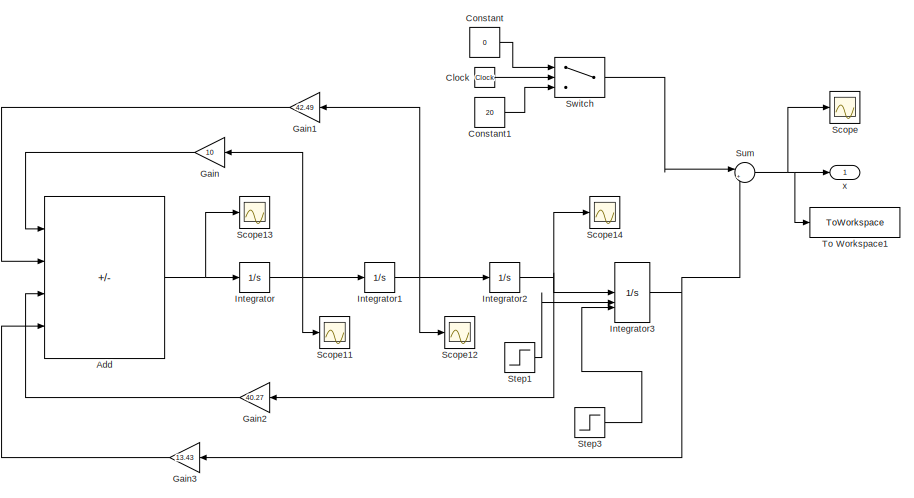
[diagram: Error Dynamics - part 1/3, left side, full height]
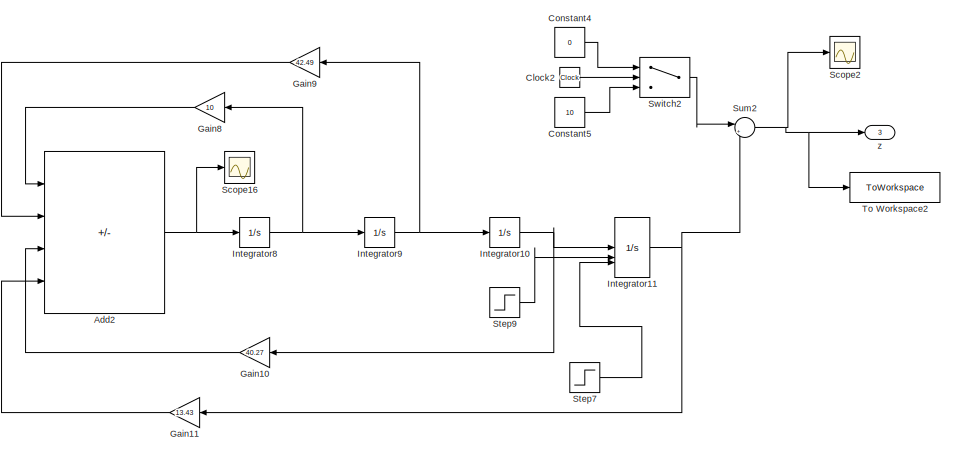
[diagram: Error Dynamics - part 2/3, right side, full height]
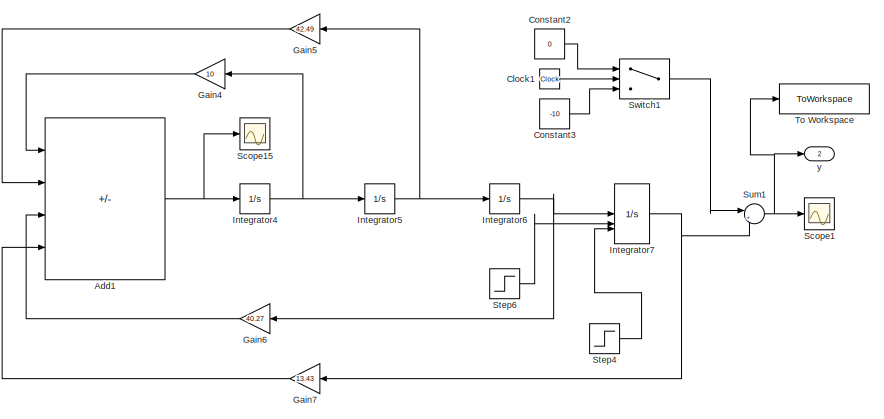
[diagram: Error Dynamics - part 3/3, center side, full height]
BLOCK [SubSystem] Error Dynamics
BLOCK [Sum] Error Dynamics/Add
  IconShape = rectangular
  Inputs = ----
BLOCK [Sum] Error Dynamics/Add1
  IconShape = rectangular
  Inputs = ----
BLOCK [Sum] Error Dynamics/Add2
  IconShape = rectangular
  Inputs = ----
BLOCK [Clock] Error Dynamics/Clock
BLOCK [Clock] Error Dynamics/Clock1
BLOCK [Clock] Error Dynamics/Clock2
BLOCK [Constant] Error Dynamics/Constant
  Value = 0
BLOCK [Constant] Error Dynamics/Constant1
  Value = 20
BLOCK [Constant] Error Dynamics/Constant2
  Value = 0
BLOCK [Constant] Error Dynamics/Constant3
  Value = -10
BLOCK [Constant] Error Dynamics/Constant4
  Value = 0
BLOCK [Constant] Error Dynamics/Constant5
  Value = 10
BLOCK [Gain] Error Dynamics/Gain
  Gain = 10
  NameLocation = top
BLOCK [Gain] Error Dynamics/Gain1
  Gain = 42.49
  NameLocation = top
BLOCK [Gain] Error Dynamics/Gain10
  Gain = 40.27
  NameLocation = top
BLOCK [Gain] Error Dynamics/Gain11
  Gain = 13.43
  NameLocation = top
BLOCK [Gain] Error Dynamics/Gain2
  Gain = 40.27
  NameLocation = top
BLOCK [Gain] Error Dynamics/Gain3
  Gain = 13.43
  NameLocation = top
BLOCK [Gain] Error Dynamics/Gain4
  Gain = 10
  NameLocation = top
BLOCK [Gain] Error Dynamics/Gain5
  Gain = 42.49
  NameLocation = top
BLOCK [Gain] Error Dynamics/Gain6
  Gain = 40.27
  NameLocation = top
BLOCK [Gain] Error Dynamics/Gain7
  Gain = 13.43
  NameLocation = top
BLOCK [Gain] Error Dynamics/Gain8
  Gain = 10
  NameLocation = top
BLOCK [Gain] Error Dynamics/Gain9
  Gain = 42.49
  NameLocation = top
BLOCK [Integrator] Error Dynamics/Integrator
BLOCK [Integrator] Error Dynamics/Integrator1
BLOCK [Integrator] Error Dynamics/Integrator10
BLOCK [Integrator] Error Dynamics/Integrator11
  ExternalReset = rising
  InitialConditionSource = external
BLOCK [Integrator] Error Dynamics/Integrator2
BLOCK [Integrator] Error Dynamics/Integrator3
  ExternalReset = rising
  InitialConditionSource = external
BLOCK [Integrator] Error Dynamics/Integrator4
BLOCK [Integrator] Error Dynamics/Integrator5
BLOCK [Integrator] Error Dynamics/Integrator6
BLOCK [Integrator] Error Dynamics/Integrator7
  ExternalReset = rising
  InitialConditionSource = external
BLOCK [Integrator] Error Dynamics/Integrator8
BLOCK [Integrator] Error Dynamics/Integrator9
BLOCK [Scope] Error Dynamics/Scope
  Floating = off
  NumInputPorts = 1
  ScopeSpecificationString = Simulink.scopes.TimeScopeBlockCfg('CurrentConfiguration', extmgr.ConfigurationSet(extmgr.Configuration('Core','General UI',true),extmgr.Configuration('Core','Source UI',true),extmgr.Configuration('Sources','WiredSimulink',true),extmgr.Configuration('Visuals','Time Domain',true,'SerializedDisplays',{struct('MinYLimReal','-2.55273','MaxYLimReal','22.53053','YLabelReal','','MinYLimMag','0.00000','Max...<+1356ch>
BLOCK [Scope] Error Dynamics/Scope1
  Floating = off
  NumInputPorts = 1
  ScopeSpecificationString = Simulink.scopes.TimeScopeBlockCfg('CurrentConfiguration', extmgr.ConfigurationSet(extmgr.Configuration('Core','General UI',true),extmgr.Configuration('Core','Source UI',true),extmgr.Configuration('Sources','WiredSimulink',true,'DataLoggingVariableName','ScopeData1'),extmgr.Configuration('Visuals','Time Domain',true,'SerializedDisplays',{struct('MinYLimReal','-12.56213','MaxYLimReal','12.5069','YLa...<+1367ch>
BLOCK [Scope] Error Dynamics/Scope11
  Floating = off
  NumInputPorts = 1
  ScopeSpecificationString = Simulink.scopes.TimeScopeBlockCfg('CurrentConfiguration', extmgr.ConfigurationSet(extmgr.Configuration('Core','General UI',true),extmgr.Configuration('Core','Source UI',true),extmgr.Configuration('Sources','WiredSimulink',true,'DataLoggingVariableName','ScopeData8'),extmgr.Configuration('Visuals','Time Domain',true,'SerializedDisplays',{struct('MinYLimReal','-3.32659','MaxYLimReal','7.64856','YLab...<+1369ch>
BLOCK [Scope] Error Dynamics/Scope12
  Floating = off
  NumInputPorts = 1
  ScopeSpecificationString = Simulink.scopes.TimeScopeBlockCfg('CurrentConfiguration', extmgr.ConfigurationSet(extmgr.Configuration('Core','General UI',true),extmgr.Configuration('Core','Source UI',true),extmgr.Configuration('Sources','WiredSimulink',true,'DataLoggingVariableName','ScopeData9'),extmgr.Configuration('Visuals','Time Domain',true,'SerializedDisplays',{struct('MinYLimReal','-0.29496','MaxYLimReal','2.65461','YLab...<+1370ch>
BLOCK [Scope] Error Dynamics/Scope13
  Floating = off
  NumInputPorts = 1
  ScopeSpecificationString = Simulink.scopes.TimeScopeBlockCfg('CurrentConfiguration', extmgr.ConfigurationSet(extmgr.Configuration('Core','General UI',true),extmgr.Configuration('Core','Source UI',true),extmgr.Configuration('Sources','WiredSimulink',true,'DataLoggingVariableName','ScopeData10'),extmgr.Configuration('Visuals','Time Domain',true,'SerializedDisplays',{struct('MinYLimReal','-318.87901','MaxYLimReal','184.65322',...<+1377ch>
BLOCK [Scope] Error Dynamics/Scope14
  Floating = off
  NumInputPorts = 1
  ScopeSpecificationString = Simulink.scopes.TimeScopeBlockCfg('CurrentConfiguration', extmgr.ConfigurationSet(extmgr.Configuration('Core','General UI',true),extmgr.Configuration('Core','Source UI',true),extmgr.Configuration('Sources','WiredSimulink',true,'DataLoggingVariableName','ScopeData11'),extmgr.Configuration('Visuals','Time Domain',true,'SerializedDisplays',{struct('MinYLimReal','8.74662','MaxYLimReal','21.28038','YLa...<+1365ch>
BLOCK [Scope] Error Dynamics/Scope15
  Floating = off
  NumInputPorts = 1
  ScopeSpecificationString = Simulink.scopes.TimeScopeBlockCfg('CurrentConfiguration', extmgr.ConfigurationSet(extmgr.Configuration('Core','General UI',true),extmgr.Configuration('Core','Source UI',true),extmgr.Configuration('Sources','WiredSimulink',true,'DataLoggingVariableName','ScopeData12'),extmgr.Configuration('Visuals','Time Domain',true,'SerializedDisplays',{struct('MinYLimReal','-318.94703','MaxYLimReal','184.5233','...<+1376ch>
BLOCK [Scope] Error Dynamics/Scope16
  Floating = off
  NumInputPorts = 1
  ScopeSpecificationString = Simulink.scopes.TimeScopeBlockCfg('CurrentConfiguration', extmgr.ConfigurationSet(extmgr.Configuration('Core','General UI',true),extmgr.Configuration('Core','Source UI',true),extmgr.Configuration('Sources','WiredSimulink',true,'DataLoggingVariableName','ScopeData13'),extmgr.Configuration('Visuals','Time Domain',true,'SerializedDisplays',{struct('MinYLimReal','-154.78133','MaxYLimReal','49.41336','...<+1376ch>
BLOCK [Scope] Error Dynamics/Scope2
  Floating = off
  NumInputPorts = 1
  ScopeSpecificationString = Simulink.scopes.TimeScopeBlockCfg('CurrentConfiguration', extmgr.ConfigurationSet(extmgr.Configuration('Core','General UI',true),extmgr.Configuration('Core','Source UI',true),extmgr.Configuration('Sources','WiredSimulink',true,'DataLoggingVariableName','ScopeData2'),extmgr.Configuration('Visuals','Time Domain',true,'SerializedDisplays',{struct('MinYLimReal','-2.52498','MaxYLimReal','22.50278','YLa...<+1396ch>
BLOCK [Step] Error Dynamics/Step1
  SampleTime = 0
  Time = 15
BLOCK [Step] Error Dynamics/Step3
  After = 20
  Before = -10
  SampleTime = 0
  Time = 15
BLOCK [Step] Error Dynamics/Step4
  After = -10
  Before = 20
  SampleTime = 0
  Time = 15
BLOCK [Step] Error Dynamics/Step6
  SampleTime = 0
  Time = 15
BLOCK [Step] Error Dynamics/Step7
  After = 10
  Before = 10
  SampleTime = 0
  Time = 15
BLOCK [Step] Error Dynamics/Step9
  SampleTime = 0
  Time = 15
BLOCK [Sum] Error Dynamics/Sum
  Inputs = |++
BLOCK [Sum] Error Dynamics/Sum1
  Inputs = |++
BLOCK [Sum] Error Dynamics/Sum2
  Inputs = |++
BLOCK [Switch] Error Dynamics/Switch
  InputSameDT = off
  SaturateOnIntegerOverflow = off
  Threshold = 15
BLOCK [Switch] Error Dynamics/Switch1
  InputSameDT = off
  SaturateOnIntegerOverflow = off
  Threshold = 15
BLOCK [Switch] Error Dynamics/Switch2
  InputSameDT = off
  SaturateOnIntegerOverflow = off
  Threshold = 15
BLOCK [ToWorkspace] Error Dynamics/To Workspace
  FixptAsFi = on
  MaxDataPoints = inf
  SampleTime = -1
  SaveFormat = Timeseries
  VariableName = ed_y
BLOCK [ToWorkspace] Error Dynamics/To Workspace1
  FixptAsFi = on
  MaxDataPoints = inf
  SampleTime = -1
  SaveFormat = Timeseries
  VariableName = ed_x
BLOCK [ToWorkspace] Error Dynamics/To Workspace2
  FixptAsFi = on
  MaxDataPoints = inf
  SampleTime = -1
  SaveFormat = Timeseries
  VariableName = ed_z
BLOCK [Outport] Error Dynamics/x
BLOCK [Outport] Error Dynamics/y
  Port = 2
BLOCK [Outport] Error Dynamics/z
  Port = 3
BLOCK [SubSystem] Subsystem
BLOCK [Clock] Subsystem/Clock1
BLOCK [Clock] Subsystem/Clock10
BLOCK [Clock] Subsystem/Clock2
BLOCK [Clock] Subsystem/Clock3
BLOCK [Clock] Subsystem/Clock4
BLOCK [Clock] Subsystem/Clock5
BLOCK [Clock] Subsystem/Clock6
BLOCK [Clock] Subsystem/Clock7
BLOCK [Clock] Subsystem/Clock8
BLOCK [Clock] Subsystem/Clock9
BLOCK [Switch] Subsystem/Switch1
  Criteria = u2 > Threshold
  InputSameDT = off
  SaturateOnIntegerOverflow = off
  Threshold = 15
BLOCK [Switch] Subsystem/Switch10
  Criteria = u2 > Threshold
  InputSameDT = off
  SaturateOnIntegerOverflow = off
  Threshold = 15
BLOCK [Switch] Subsystem/Switch2
  Criteria = u2 > Threshold
  InputSameDT = off
  SaturateOnIntegerOverflow = off
  Threshold = 15
BLOCK [Switch] Subsystem/Switch3
  Criteria = u2 > Threshold
  InputSameDT = off
  SaturateOnIntegerOverflow = off
  Threshold = 15
BLOCK [Switch] Subsystem/Switch4
  Criteria = u2 > Threshold
  InputSameDT = off
  SaturateOnIntegerOverflow = off
  Threshold = 15
BLOCK [Switch] Subsystem/Switch5
  Criteria = u2 > Threshold
  InputSameDT = off
  SaturateOnIntegerOverflow = off
  Threshold = 15
BLOCK [Switch] Subsystem/Switch6
  Criteria = u2 > Threshold
  InputSameDT = off
  SaturateOnIntegerOverflow = off
  Threshold = 15
BLOCK [Switch] Subsystem/Switch7
  Criteria = u2 > Threshold
  InputSameDT = off
  SaturateOnIntegerOverflow = off
  Threshold = 15
BLOCK [Switch] Subsystem/Switch8
  Criteria = u2 > Threshold
  InputSameDT = off
  SaturateOnIntegerOverflow = off
  Threshold = 15
BLOCK [Switch] Subsystem/Switch9
  Criteria = u2 > Threshold
  InputSameDT = off
  SaturateOnIntegerOverflow = off
  Threshold = 15
BLOCK [Outport] Subsystem/phi
  Port = 4
BLOCK [Inport] Subsystem/phi1
  Port = 7
BLOCK [Inport] Subsystem/phi2
  Port = 8
BLOCK [Outport] Subsystem/psi
  Port = 6
BLOCK [Inport] Subsystem/psi 1
  Port = 11
BLOCK [Inport] Subsystem/psi 2
  Port = 12
BLOCK [Outport] Subsystem/theta
  Port = 5
BLOCK [Inport] Subsystem/theta1
  Port = 9
BLOCK [Inport] Subsystem/theta2
  Port = 10
BLOCK [Outport] Subsystem/u1
  Port = 7
BLOCK [Inport] Subsystem/u11
  Port = 13
BLOCK [Inport] Subsystem/u12
  Port = 14
BLOCK [Outport] Subsystem/u2
  Port = 8
BLOCK [Inport] Subsystem/u21
  Port = 15
BLOCK [Inport] Subsystem/u22
  Port = 16
BLOCK [Outport] Subsystem/u3
  Port = 9
BLOCK [Inport] Subsystem/u31
  Port = 17
BLOCK [Inport] Subsystem/u32
  Port = 18
BLOCK [Outport] Subsystem/u4
  Port = 10
BLOCK [Inport] Subsystem/u41
  Port = 19
BLOCK [Inport] Subsystem/u42
  Port = 20
BLOCK [Outport] Subsystem/x
BLOCK [Inport] Subsystem/x1
BLOCK [Inport] Subsystem/x2
  Port = 2
BLOCK [Outport] Subsystem/y
  Port = 2
BLOCK [Inport] Subsystem/y1
  Port = 3
BLOCK [Inport] Subsystem/y2
  Port = 4
BLOCK [Outport] Subsystem/z
  Port = 3
BLOCK [Inport] Subsystem/z1
  Port = 5
BLOCK [Inport] Subsystem/z2
  Port = 6
BLOCK [Switch] Switch
  Criteria = u2 > Threshold
  InputSameDT = off
  NameLocation = left
  SaturateOnIntegerOverflow = off
  Threshold = 15
BLOCK [Switch] Switch1
  Criteria = u2 > Threshold
  InputSameDT = off
  NameLocation = right
  SaturateOnIntegerOverflow = off
  Threshold = 15
BLOCK [ToWorkspace] To Workspace
  FixptAsFi = on
  MaxDataPoints = inf
  SampleTime = -1
  SaveFormat = Timeseries
  VariableName = x
BLOCK [ToWorkspace] To Workspace1
  FixptAsFi = on
  MaxDataPoints = inf
  SampleTime = -1
  SaveFormat = Timeseries
  VariableName = y
BLOCK [ToWorkspace] To Workspace2
  FixptAsFi = on
  MaxDataPoints = inf
  SampleTime = -1
  SaveFormat = Timeseries
  VariableName = z
BLOCK [Scope] X from  Error Dynamics
  Floating = off
  NumInputPorts = 1
  ScopeSpecificationString = Simulink.scopes.TimeScopeBlockCfg('CurrentConfiguration', extmgr.ConfigurationSet(extmgr.Configuration('Core','General UI',true),extmgr.Configuration('Core','Source UI',true),extmgr.Configuration('Sources','WiredSimulink',true,'DataLoggingVariableName','ScopeData1'),extmgr.Configuration('Visuals','Time Domain',true,'SerializedDisplays',{struct('MinYLimReal','-2.55273','MaxYLimReal','22.53053','YLa...<+1379ch>
BLOCK [Scope] Y from Error Dynamics
  Floating = off
  NumInputPorts = 1
  ScopeSpecificationString = Simulink.scopes.TimeScopeBlockCfg('CurrentConfiguration', extmgr.ConfigurationSet(extmgr.Configuration('Core','General UI',true),extmgr.Configuration('Core','Source UI',true),extmgr.Configuration('Sources','WiredSimulink',true,'DataLoggingVariableName','ScopeData2'),extmgr.Configuration('Visuals','Time Domain',true,'SerializedDisplays',{struct('MinYLimReal','-12.54995','MaxYLimReal','12.50555','YL...<+1381ch>
BLOCK [Scope] Z from Error Dynamics
  Floating = off
  NumInputPorts = 1
  ScopeSpecificationString = Simulink.scopes.TimeScopeBlockCfg('CurrentConfiguration', extmgr.ConfigurationSet(extmgr.Configuration('Core','General UI',true),extmgr.Configuration('Core','Source UI',true),extmgr.Configuration('Sources','WiredSimulink',true,'DataLoggingVariableName','ScopeData3'),extmgr.Configuration('Visuals','Time Domain',true,'SerializedDisplays',{struct('MinYLimReal','-2.52498','MaxYLimReal','22.50278','YLa...<+1379ch>
BLOCK [Scope] phi scope
  Floating = off
  NumInputPorts = 1
  ScopeSpecificationString = Simulink.scopes.TimeScopeBlockCfg('CurrentConfiguration', extmgr.ConfigurationSet(extmgr.Configuration('Core','General UI',true),extmgr.Configuration('Core','Source UI',true),extmgr.Configuration('Sources','WiredSimulink',true,'DataLoggingVariableName','ScopeData4'),extmgr.Configuration('Visuals','Time Domain',true,'SerializedDisplays',{struct('MinYLimReal','-0.45012','MaxYLimReal','1.04102','YLab...<+1370ch>
BLOCK [Scope] psi scope
  Floating = off
  NumInputPorts = 1
  ScopeSpecificationString = Simulink.scopes.TimeScopeBlockCfg('CurrentConfiguration', extmgr.ConfigurationSet(extmgr.Configuration('Core','General UI',true),extmgr.Configuration('Core','Source UI',true),extmgr.Configuration('Sources','WiredSimulink',true,'DataLoggingVariableName','ScopeData6'),extmgr.Configuration('Visuals','Time Domain',true,'SerializedDisplays',{struct('MinYLimReal','-0.07031','MaxYLimReal','0.58948','YLab...<+1403ch>
BLOCK [Scope] theta scope
  Floating = off
  NumInputPorts = 1
  ScopeSpecificationString = Simulink.scopes.TimeScopeBlockCfg('CurrentConfiguration', extmgr.ConfigurationSet(extmgr.Configuration('Core','General UI',true),extmgr.Configuration('Core','Source UI',true),extmgr.Configuration('Sources','WiredSimulink',true,'DataLoggingVariableName','ScopeData5'),extmgr.Configuration('Visuals','Time Domain',true,'SerializedDisplays',{struct('MinYLimReal','-0.80506','MaxYLimReal','0.77107','YLab...<+1370ch>
BLOCK [Scope] u1 scope
  Floating = off
  NumInputPorts = 1
  ScopeSpecificationString = Simulink.scopes.TimeScopeBlockCfg('CurrentConfiguration', extmgr.ConfigurationSet(extmgr.Configuration('Core','General UI',true),extmgr.Configuration('Core','Source UI',true),extmgr.Configuration('Sources','WiredSimulink',true,'DataLoggingVariableName','ScopeData7'),extmgr.Configuration('Visuals','Time Domain',true,'SerializedDisplays',{struct('MinYLimReal','8.1622','MaxYLimReal','11.18777','YLabe...<+1368ch>
BLOCK [Scope] u2 scope
  Floating = off
  NumInputPorts = 1
  ScopeSpecificationString = Simulink.scopes.TimeScopeBlockCfg('CurrentConfiguration', extmgr.ConfigurationSet(extmgr.Configuration('Core','General UI',true),extmgr.Configuration('Core','Source UI',true),extmgr.Configuration('Sources','WiredSimulink',true,'DataLoggingVariableName','ScopeData8'),extmgr.Configuration('Visuals','Time Domain',true,'SerializedDisplays',{struct('MinYLimReal','-71.5644','MaxYLimReal','39.53554','YLa...<+1372ch>
BLOCK [Scope] u3 scope
  Floating = off
  NumInputPorts = 1
  ScopeSpecificationString = Simulink.scopes.TimeScopeBlockCfg('CurrentConfiguration', extmgr.ConfigurationSet(extmgr.Configuration('Core','General UI',true),extmgr.Configuration('Core','Source UI',true),extmgr.Configuration('Sources','WiredSimulink',true,'DataLoggingVariableName','ScopeData9'),extmgr.Configuration('Visuals','Time Domain',true,'SerializedDisplays',{struct('MinYLimReal','-62.81051','MaxYLimReal','24.13677','YL...<+1376ch>
BLOCK [Scope] u4 scope
  Floating = off
  NumInputPorts = 1
  ScopeSpecificationString = Simulink.scopes.TimeScopeBlockCfg('CurrentConfiguration', extmgr.ConfigurationSet(extmgr.Configuration('Core','General UI',true),extmgr.Configuration('Core','Source UI',true),extmgr.Configuration('Sources','WiredSimulink',true,'DataLoggingVariableName','ScopeData10'),extmgr.Configuration('Visuals','Time Domain',true,'SerializedDisplays',{struct('MinYLimReal','-5.97743','MaxYLimReal','1.4469','YLab...<+1370ch>
BLOCK [Scope] x scope
  Floating = off
  NumInputPorts = 1
  ScopeSpecificationString = Simulink.scopes.TimeScopeBlockCfg('CurrentConfiguration', extmgr.ConfigurationSet(extmgr.Configuration('Core','General UI',true),extmgr.Configuration('Core','Source UI',true),extmgr.Configuration('Sources','WiredSimulink',true,'DataLoggingVariableName','ScopeData1'),extmgr.Configuration('Visuals','Time Domain',true,'SerializedDisplays',{struct('MinYLimReal','-2.55409','MaxYLimReal','22.53536','YLa...<+1374ch>
BLOCK [Scope] y scope
  Floating = off
  NumInputPorts = 1
  ScopeSpecificationString = Simulink.scopes.TimeScopeBlockCfg('CurrentConfiguration', extmgr.ConfigurationSet(extmgr.Configuration('Core','General UI',true),extmgr.Configuration('Core','Source UI',true),extmgr.Configuration('Sources','WiredSimulink',true,'DataLoggingVariableName','ScopeData2'),extmgr.Configuration('Visuals','Time Domain',true,'SerializedDisplays',{struct('MinYLimReal','-12.55339','MaxYLimReal','12.50593','YL...<+1376ch>
BLOCK [Scope] z scope
  Floating = off
  NumInputPorts = 1
  ScopeSpecificationString = Simulink.scopes.TimeScopeBlockCfg('CurrentConfiguration', extmgr.ConfigurationSet(extmgr.Configuration('Core','General UI',true),extmgr.Configuration('Core','Source UI',true),extmgr.Configuration('Sources','WiredSimulink',true,'DataLoggingVariableName','ScopeData3'),extmgr.Configuration('Visuals','Time Domain',true,'SerializedDisplays',{struct('MinYLimReal','-2.52492','MaxYLimReal','22.50277','YLa...<+1374ch>
LINE Clock1:1 -> Switch1:2
LINE Clock:1 -> Switch:2
LINE Constant1:1 -> Switch:3
LINE Constant2:1 -> Switch1:1
LINE Constant3:1 -> Switch1:3
LINE Constant:1 -> Switch:1
NET Enabled Subsystem/Constant4:1 -> Enabled Subsystem/Error Generator:1, Enabled Subsystem/FL Controller 1:4
NET Enabled Subsystem/Constant5:1 -> Enabled Subsystem/Error Generator:2, Enabled Subsystem/FL Controller 1:5
NET Enabled Subsystem/Constant6:1 -> Enabled Subsystem/Error Generator:3, Enabled Subsystem/FL Controller 1:6
LINE Enabled Subsystem/Error Generator/Subtract1:1 -> Enabled Subsystem/Error Generator/ey:1
LINE Enabled Subsystem/Error Generator/Subtract2:1 -> Enabled Subsystem/Error Generator/ez:1
LINE Enabled Subsystem/Error Generator/Subtract:1 -> Enabled Subsystem/Error Generator/ex:1
LINE Enabled Subsystem/Error Generator/x:1 -> Enabled Subsystem/Error Generator/Subtract:1
LINE Enabled Subsystem/Error Generator/xd:1 -> Enabled Subsystem/Error Generator/Subtract:2
LINE Enabled Subsystem/Error Generator/y:1 -> Enabled Subsystem/Error Generator/Subtract1:1
LINE Enabled Subsystem/Error Generator/yd:1 -> Enabled Subsystem/Error Generator/Subtract1:2
LINE Enabled Subsystem/Error Generator/z:1 -> Enabled Subsystem/Error Generator/Subtract2:1
LINE Enabled Subsystem/Error Generator/zd:1 -> Enabled Subsystem/Error Generator/Subtract2:2
LINE Enabled Subsystem/Error Generator:1 -> Enabled Subsystem/FL Controller 1:1
LINE Enabled Subsystem/Error Generator:2 -> Enabled Subsystem/FL Controller 1:2
LINE Enabled Subsystem/Error Generator:3 -> Enabled Subsystem/FL Controller 1:3
LINE Enabled Subsystem/FL Controller 1/Derivative10:1 -> Enabled Subsystem/FL Controller 1/Derivative11:1
NET Enabled Subsystem/FL Controller 1/Derivative11:1 -> Enabled Subsystem/FL Controller 1/Scope1:1, Enabled Subsystem/FL Controller 1/a1:1
NET Enabled Subsystem/FL Controller 1/Derivative12:1 -> Enabled Subsystem/FL Controller 1/Derivative13:1, Enabled Subsystem/FL Controller 1/Gain:1, Enabled Subsystem/FL Controller 1/Scope:1
NET Enabled Subsystem/FL Controller 1/Derivative13:1 -> Enabled Subsystem/FL Controller 1/Derivative14:1, Enabled Subsystem/FL Controller 1/Gain1:1, Enabled Subsystem/FL Controller 1/Scope3:1
NET Enabled Subsystem/FL Controller 1/Derivative14:1 -> Enabled Subsystem/FL Controller 1/Gain2:1, Enabled Subsystem/FL Controller 1/Scope4:1
NET Enabled Subsystem/FL Controller 1/Derivative17:1 -> Enabled Subsystem/FL Controller 1/Derivative18:1, Enabled Subsystem/FL Controller 1/Product4:2
NET Enabled Subsystem/FL Controller 1/Derivative18:1 -> Enabled Subsystem/FL Controller 1/Derivative19:1, Enabled Subsystem/FL Controller 1/Product5:2
LINE Enabled Subsystem/FL Controller 1/Derivative19:1 -> Enabled Subsystem/FL Controller 1/Product7:2
LINE Enabled Subsystem/FL Controller 1/Derivative1:1 -> Enabled Subsystem/FL Controller 1/Derivative2:1
NET Enabled Subsystem/FL Controller 1/Derivative24:1 -> Enabled Subsystem/FL Controller 1/Derivative25:1, Enabled Subsystem/FL Controller 1/Product8:2
NET Enabled Subsystem/FL Controller 1/Derivative25:1 -> Enabled Subsystem/FL Controller 1/Derivative26:1, Enabled Subsystem/FL Controller 1/Product9:2
LINE Enabled Subsystem/FL Controller 1/Derivative26:1 -> Enabled Subsystem/FL Controller 1/Product11:2
LINE Enabled Subsystem/FL Controller 1/Derivative2:1 -> Enabled Subsystem/FL Controller 1/Derivative3:1
LINE Enabled Subsystem/FL Controller 1/Derivative3:1 -> Enabled Subsystem/FL Controller 1/a3:1
LINE Enabled Subsystem/FL Controller 1/Derivative4:1 -> Enabled Subsystem/FL Controller 1/Derivative5:1
LINE Enabled Subsystem/FL Controller 1/Derivative5:1 -> Enabled Subsystem/FL Controller 1/Derivative6:1
LINE Enabled Subsystem/FL Controller 1/Derivative6:1 -> Enabled Subsystem/FL Controller 1/Derivative7:1
LINE Enabled Subsystem/FL Controller 1/Derivative7:1 -> Enabled Subsystem/FL Controller 1/a2:1
LINE Enabled Subsystem/FL Controller 1/Derivative8:1 -> Enabled Subsystem/FL Controller 1/Derivative9:1
LINE Enabled Subsystem/FL Controller 1/Derivative9:1 -> Enabled Subsystem/FL Controller 1/Derivative10:1
LINE Enabled Subsystem/FL Controller 1/Derivative:1 -> Enabled Subsystem/FL Controller 1/Derivative1:1
LINE Enabled Subsystem/FL Controller 1/Gain1:1 -> Enabled Subsystem/FL Controller 1/a1:3
LINE Enabled Subsystem/FL Controller 1/Gain2:1 -> Enabled Subsystem/FL Controller 1/a1:2
NET Enabled Subsystem/FL Controller 1/Gain3:1 -> Enabled Subsystem/FL Controller 1/Scope2:1, Enabled Subsystem/FL Controller 1/a1:4
LINE Enabled Subsystem/FL Controller 1/Gain:1 -> Enabled Subsystem/FL Controller 1/a1:5
LINE Enabled Subsystem/FL Controller 1/Product10:1 -> Enabled Subsystem/FL Controller 1/a2:4
LINE Enabled Subsystem/FL Controller 1/Product11:1 -> Enabled Subsystem/FL Controller 1/a2:2
LINE Enabled Subsystem/FL Controller 1/Product4:1 -> Enabled Subsystem/FL Controller 1/a3:5
LINE Enabled Subsystem/FL Controller 1/Product5:1 -> Enabled Subsystem/FL Controller 1/a3:3
LINE Enabled Subsystem/FL Controller 1/Product6:1 -> Enabled Subsystem/FL Controller 1/a3:4
LINE Enabled Subsystem/FL Controller 1/Product7:1 -> Enabled Subsystem/FL Controller 1/a3:2
LINE Enabled Subsystem/FL Controller 1/Product8:1 -> Enabled Subsystem/FL Controller 1/a2:5
LINE Enabled Subsystem/FL Controller 1/Product9:1 -> Enabled Subsystem/FL Controller 1/a2:3
LINE Enabled Subsystem/FL Controller 1/a1:1 -> Enabled Subsystem/FL Controller 1/v1:1
LINE Enabled Subsystem/FL Controller 1/a2:1 -> Enabled Subsystem/FL Controller 1/v2:1
LINE Enabled Subsystem/FL Controller 1/a3:1 -> Enabled Subsystem/FL Controller 1/v3:1
LINE Enabled Subsystem/FL Controller 1/dx:1 -> Enabled Subsystem/FL Controller 1/Derivative8:1
LINE Enabled Subsystem/FL Controller 1/dy:1 -> Enabled Subsystem/FL Controller 1/Derivative4:1
LINE Enabled Subsystem/FL Controller 1/dz:1 -> Enabled Subsystem/FL Controller 1/Derivative:1
NET Enabled Subsystem/FL Controller 1/ex:1 -> Enabled Subsystem/FL Controller 1/Derivative12:1, Enabled Subsystem/FL Controller 1/Gain3:1
NET Enabled Subsystem/FL Controller 1/ey:1 -> Enabled Subsystem/FL Controller 1/Derivative24:1, Enabled Subsystem/FL Controller 1/Product10:1
NET Enabled Subsystem/FL Controller 1/ez:1 -> Enabled Subsystem/FL Controller 1/Derivative17:1, Enabled Subsystem/FL Controller 1/Product6:1
LINE Enabled Subsystem/FL Controller 1/ky1:1 -> Enabled Subsystem/FL Controller 1/Product11:1
LINE Enabled Subsystem/FL Controller 1/ky2:1 -> Enabled Subsystem/FL Controller 1/Product9:1
LINE Enabled Subsystem/FL Controller 1/ky3:1 -> Enabled Subsystem/FL Controller 1/Product8:1
LINE Enabled Subsystem/FL Controller 1/ky4:1 -> Enabled Subsystem/FL Controller 1/Product10:2
LINE Enabled Subsystem/FL Controller 1/kz1:1 -> Enabled Subsystem/FL Controller 1/Product7:1
LINE Enabled Subsystem/FL Controller 1/kz2:1 -> Enabled Subsystem/FL Controller 1/Product5:1
LINE Enabled Subsystem/FL Controller 1/kz3:1 -> Enabled Subsystem/FL Controller 1/Product4:1
LINE Enabled Subsystem/FL Controller 1/kz4:1 -> Enabled Subsystem/FL Controller 1/Product6:2
NET Enabled Subsystem/FL Controller 1:1 -> Enabled Subsystem/FL Controller 2 :1, Enabled Subsystem/Scope1:1
LINE Enabled Subsystem/FL Controller 1:2 -> Enabled Subsystem/FL Controller 2 :2
LINE Enabled Subsystem/FL Controller 1:3 -> Enabled Subsystem/FL Controller 2 :3
LINE Enabled Subsystem/FL Controller 2 /Derivative1:1 -> Enabled Subsystem/FL Controller 2 /MATLAB Function:6
LINE Enabled Subsystem/FL Controller 2 /Derivative:1 -> Enabled Subsystem/FL Controller 2 /MATLAB Function:7
NET Enabled Subsystem/FL Controller 2 /Integrator1:1 -> Enabled Subsystem/FL Controller 2 /MATLAB Function:8, Enabled Subsystem/FL Controller 2 /u1:1
NET Enabled Subsystem/FL Controller 2 /Integrator:1 -> Enabled Subsystem/FL Controller 2 /Integrator1:1, Enabled Subsystem/FL Controller 2 /MATLAB Function:9
LINE Enabled Subsystem/FL Controller 2 /MATLAB Function:1 -> Enabled Subsystem/FL Controller 2 /Integrator:1
NET Enabled Subsystem/FL Controller 2 /MATLAB Function:2 -> Enabled Subsystem/FL Controller 2 /Scope:1, Enabled Subsystem/FL Controller 2 /u2:1
LINE Enabled Subsystem/FL Controller 2 /MATLAB Function:3 -> Enabled Subsystem/FL Controller 2 /u3:1
NET Enabled Subsystem/FL Controller 2 /phi:1 -> Enabled Subsystem/FL Controller 2 /Derivative:1, Enabled Subsystem/FL Controller 2 /MATLAB Function:4
NET Enabled Subsystem/FL Controller 2 /theta:1 -> Enabled Subsystem/FL Controller 2 /Derivative1:1, Enabled Subsystem/FL Controller 2 /MATLAB Function:5
LINE Enabled Subsystem/FL Controller 2 /v1:1 -> Enabled Subsystem/FL Controller 2 /MATLAB Function:1
LINE Enabled Subsystem/FL Controller 2 /v2:1 -> Enabled Subsystem/FL Controller 2 /MATLAB Function:2
LINE Enabled Subsystem/FL Controller 2 /v3:1 -> Enabled Subsystem/FL Controller 2 /MATLAB Function:3
NET Enabled Subsystem/FL Controller 2 :1 -> Enabled Subsystem/Quadcopter :1, Enabled Subsystem/u1 scope:1, Enabled Subsystem/u1:1
NET Enabled Subsystem/FL Controller 2 :2 -> Enabled Subsystem/Quadcopter :2, Enabled Subsystem/u2 scope:1, Enabled Subsystem/u2:1
NET Enabled Subsystem/FL Controller 2 :3 -> Enabled Subsystem/Quadcopter :3, Enabled Subsystem/u3 scope:1, Enabled Subsystem/u3:1
LINE Enabled Subsystem/Quadcopter /Integrator10:1 -> Enabled Subsystem/Quadcopter /Integrator11:1
LINE Enabled Subsystem/Quadcopter /Integrator11:1 -> Enabled Subsystem/Quadcopter /psi:1
LINE Enabled Subsystem/Quadcopter /Integrator1:1 -> Enabled Subsystem/Quadcopter /x:1
LINE Enabled Subsystem/Quadcopter /Integrator2:1 -> Enabled Subsystem/Quadcopter /Integrator3:1
LINE Enabled Subsystem/Quadcopter /Integrator3:1 -> Enabled Subsystem/Quadcopter /y:1
LINE Enabled Subsystem/Quadcopter /Integrator4:1 -> Enabled Subsystem/Quadcopter /Integrator5:1
LINE Enabled Subsystem/Quadcopter /Integrator5:1 -> Enabled Subsystem/Quadcopter /z:1
LINE Enabled Subsystem/Quadcopter /Integrator6:1 -> Enabled Subsystem/Quadcopter /Integrator7:1
NET Enabled Subsystem/Quadcopter /Integrator7:1 -> Enabled Subsystem/Quadcopter /Quadcopter Dynamics:5, Enabled Subsystem/Quadcopter /phi:1
LINE Enabled Subsystem/Quadcopter /Integrator8:1 -> Enabled Subsystem/Quadcopter /Integrator9:1
NET Enabled Subsystem/Quadcopter /Integrator9:1 -> Enabled Subsystem/Quadcopter /Quadcopter Dynamics:6, Enabled Subsystem/Quadcopter /theta:1
LINE Enabled Subsystem/Quadcopter /Integrator:1 -> Enabled Subsystem/Quadcopter /Integrator1:1
LINE Enabled Subsystem/Quadcopter /Quadcopter Dynamics:1 -> Enabled Subsystem/Quadcopter /Integrator:1
LINE Enabled Subsystem/Quadcopter /Quadcopter Dynamics:2 -> Enabled Subsystem/Quadcopter /Integrator2:1
LINE Enabled Subsystem/Quadcopter /Quadcopter Dynamics:3 -> Enabled Subsystem/Quadcopter /Integrator4:1
LINE Enabled Subsystem/Quadcopter /Quadcopter Dynamics:4 -> Enabled Subsystem/Quadcopter /Integrator6:1
LINE Enabled Subsystem/Quadcopter /Quadcopter Dynamics:5 -> Enabled Subsystem/Quadcopter /Integrator8:1
LINE Enabled Subsystem/Quadcopter /Quadcopter Dynamics:6 -> Enabled Subsystem/Quadcopter /Integrator10:1
LINE Enabled Subsystem/Quadcopter /u1:1 -> Enabled Subsystem/Quadcopter /Quadcopter Dynamics:1
LINE Enabled Subsystem/Quadcopter /u2:1 -> Enabled Subsystem/Quadcopter /Quadcopter Dynamics:2
LINE Enabled Subsystem/Quadcopter /u3:1 -> Enabled Subsystem/Quadcopter /Quadcopter Dynamics:3
LINE Enabled Subsystem/Quadcopter /u4:1 -> Enabled Subsystem/Quadcopter /Quadcopter Dynamics:4
NET Enabled Subsystem/Quadcopter :1 -> Enabled Subsystem/Error Generator:4, Enabled Subsystem/To Workspace3:1, Enabled Subsystem/x obt1:1, Enabled Subsystem/x:1
NET Enabled Subsystem/Quadcopter :2 -> Enabled Subsystem/Error Generator:5, Enabled Subsystem/To Workspace4:1, Enabled Subsystem/y obt1:1, Enabled Subsystem/y:1
NET Enabled Subsystem/Quadcopter :3 -> Enabled Subsystem/Error Generator:6, Enabled Subsystem/To Workspace5:1, Enabled Subsystem/z obt1:1, Enabled Subsystem/z:1
NET Enabled Subsystem/Quadcopter :4 -> Enabled Subsystem/FL Controller 2 :4, Enabled Subsystem/phi obt1:1, Enabled Subsystem/phi:1
NET Enabled Subsystem/Quadcopter :5 -> Enabled Subsystem/FL Controller 2 :5, Enabled Subsystem/theta obt1:1, Enabled Subsystem/theta:1
NET Enabled Subsystem/Quadcopter :6 -> Enabled Subsystem/psi obt1:1, Enabled Subsystem/psi:1
LINE Enabled Subsystem/Yaw control PD Controller1/1Gain1:1 -> Enabled Subsystem/Yaw control PD Controller1/Add:2
LINE Enabled Subsystem/Yaw control PD Controller1/2Gain:1 -> Enabled Subsystem/Yaw control PD Controller1/Add:1
NET Enabled Subsystem/Yaw control PD Controller1/Add:1 -> Enabled Subsystem/Yaw control PD Controller1/Integrator:1, Enabled Subsystem/Yaw control PD Controller1/Scope1:1, Enabled Subsystem/Yaw control PD Controller1/u4:1
NET Enabled Subsystem/Yaw control PD Controller1/Constant3:1 -> Enabled Subsystem/Yaw control PD Controller1/Derivative:1, Enabled Subsystem/Yaw control PD Controller1/Sum:2
NET Enabled Subsystem/Yaw control PD Controller1/Derivative1:1 -> Enabled Subsystem/Yaw control PD Controller1/Add:3, Enabled Subsystem/Yaw control PD Controller1/Scope2:1
NET Enabled Subsystem/Yaw control PD Controller1/Derivative:1 -> Enabled Subsystem/Yaw control PD Controller1/Derivative1:1, Enabled Subsystem/Yaw control PD Controller1/Sum1:2
LINE Enabled Subsystem/Yaw control PD Controller1/Integrator1:1 -> Enabled Subsystem/Yaw control PD Controller1/Sum:1
NET Enabled Subsystem/Yaw control PD Controller1/Integrator:1 -> Enabled Subsystem/Yaw control PD Controller1/Integrator1:1, Enabled Subsystem/Yaw control PD Controller1/Sum1:1
LINE Enabled Subsystem/Yaw control PD Controller1/Sum1:1 -> Enabled Subsystem/Yaw control PD Controller1/1Gain1:1
LINE Enabled Subsystem/Yaw control PD Controller1/Sum:1 -> Enabled Subsystem/Yaw control PD Controller1/2Gain:1
NET Enabled Subsystem/Yaw control PD Controller1:1 -> Enabled Subsystem/Quadcopter :4, Enabled Subsystem/u4:1
NET Enabled Subsystem1/Constant7:1 -> Enabled Subsystem1/Error Generator3:1, Enabled Subsystem1/FL Controller5:4
NET Enabled Subsystem1/Constant8:1 -> Enabled Subsystem1/Error Generator3:2, Enabled Subsystem1/FL Controller5:5
NET Enabled Subsystem1/Constant9:1 -> Enabled Subsystem1/Error Generator3:3, Enabled Subsystem1/FL Controller5:6
LINE Enabled Subsystem1/Error Generator3/Subtract1:1 -> Enabled Subsystem1/Error Generator3/ey:1
LINE Enabled Subsystem1/Error Generator3/Subtract2:1 -> Enabled Subsystem1/Error Generator3/ez:1
LINE Enabled Subsystem1/Error Generator3/Subtract:1 -> Enabled Subsystem1/Error Generator3/ex:1
LINE Enabled Subsystem1/Error Generator3/x:1 -> Enabled Subsystem1/Error Generator3/Subtract:1
LINE Enabled Subsystem1/Error Generator3/xd:1 -> Enabled Subsystem1/Error Generator3/Subtract:2
LINE Enabled Subsystem1/Error Generator3/y:1 -> Enabled Subsystem1/Error Generator3/Subtract1:1
LINE Enabled Subsystem1/Error Generator3/yd:1 -> Enabled Subsystem1/Error Generator3/Subtract1:2
LINE Enabled Subsystem1/Error Generator3/z:1 -> Enabled Subsystem1/Error Generator3/Subtract2:1
LINE Enabled Subsystem1/Error Generator3/zd:1 -> Enabled Subsystem1/Error Generator3/Subtract2:2
NET Enabled Subsystem1/Error Generator3:1 -> Enabled Subsystem1/FL Controller5:1, Enabled Subsystem1/Scope10:1
LINE Enabled Subsystem1/Error Generator3:2 -> Enabled Subsystem1/FL Controller5:2
NET Enabled Subsystem1/Error Generator3:3 -> Enabled Subsystem1/FL Controller5:3, Enabled Subsystem1/Scope9:1
LINE Enabled Subsystem1/FL Controller4/Derivative1:1 -> Enabled Subsystem1/FL Controller4/MATLAB Function:6
LINE Enabled Subsystem1/FL Controller4/Derivative:1 -> Enabled Subsystem1/FL Controller4/MATLAB Function:7
NET Enabled Subsystem1/FL Controller4/Integrator1:1 -> Enabled Subsystem1/FL Controller4/MATLAB Function:8, Enabled Subsystem1/FL Controller4/u1:1
NET Enabled Subsystem1/FL Controller4/Integrator:1 -> Enabled Subsystem1/FL Controller4/Integrator1:1, Enabled Subsystem1/FL Controller4/MATLAB Function:9
LINE Enabled Subsystem1/FL Controller4/MATLAB Function:1 -> Enabled Subsystem1/FL Controller4/Integrator:1
NET Enabled Subsystem1/FL Controller4/MATLAB Function:2 -> Enabled Subsystem1/FL Controller4/Scope:1, Enabled Subsystem1/FL Controller4/u2:1
LINE Enabled Subsystem1/FL Controller4/MATLAB Function:3 -> Enabled Subsystem1/FL Controller4/u3:1
NET Enabled Subsystem1/FL Controller4/phi:1 -> Enabled Subsystem1/FL Controller4/Derivative:1, Enabled Subsystem1/FL Controller4/MATLAB Function:4
NET Enabled Subsystem1/FL Controller4/theta:1 -> Enabled Subsystem1/FL Controller4/Derivative1:1, Enabled Subsystem1/FL Controller4/MATLAB Function:5
LINE Enabled Subsystem1/FL Controller4/v1:1 -> Enabled Subsystem1/FL Controller4/MATLAB Function:1
LINE Enabled Subsystem1/FL Controller4/v2:1 -> Enabled Subsystem1/FL Controller4/MATLAB Function:2
LINE Enabled Subsystem1/FL Controller4/v3:1 -> Enabled Subsystem1/FL Controller4/MATLAB Function:3
NET Enabled Subsystem1/FL Controller4:1 -> Enabled Subsystem1/Filtered u7:1, Enabled Subsystem1/Quadcopter 2:1, Enabled Subsystem1/u1:1
NET Enabled Subsystem1/FL Controller4:2 -> Enabled Subsystem1/Filtered u8:1, Enabled Subsystem1/Quadcopter 2:2, Enabled Subsystem1/Scope8:1, Enabled Subsystem1/u2:1
NET Enabled Subsystem1/FL Controller4:3 -> Enabled Subsystem1/Filtered u9:1, Enabled Subsystem1/Quadcopter 2:3, Enabled Subsystem1/Scope7:1, Enabled Subsystem1/u3:1
LINE Enabled Subsystem1/FL Controller5/Derivative10:1 -> Enabled Subsystem1/FL Controller5/Derivative11:1
NET Enabled Subsystem1/FL Controller5/Derivative11:1 -> Enabled Subsystem1/FL Controller5/Scope1:1, Enabled Subsystem1/FL Controller5/a1:1
NET Enabled Subsystem1/FL Controller5/Derivative12:1 -> Enabled Subsystem1/FL Controller5/Derivative13:1, Enabled Subsystem1/FL Controller5/Gain:1, Enabled Subsystem1/FL Controller5/Scope:1
NET Enabled Subsystem1/FL Controller5/Derivative13:1 -> Enabled Subsystem1/FL Controller5/Derivative14:1, Enabled Subsystem1/FL Controller5/Gain1:1, Enabled Subsystem1/FL Controller5/Scope3:1
NET Enabled Subsystem1/FL Controller5/Derivative14:1 -> Enabled Subsystem1/FL Controller5/Gain2:1, Enabled Subsystem1/FL Controller5/Scope4:1
NET Enabled Subsystem1/FL Controller5/Derivative17:1 -> Enabled Subsystem1/FL Controller5/Derivative18:1, Enabled Subsystem1/FL Controller5/Product4:2
NET Enabled Subsystem1/FL Controller5/Derivative18:1 -> Enabled Subsystem1/FL Controller5/Derivative19:1, Enabled Subsystem1/FL Controller5/Product5:2
LINE Enabled Subsystem1/FL Controller5/Derivative19:1 -> Enabled Subsystem1/FL Controller5/Product7:2
LINE Enabled Subsystem1/FL Controller5/Derivative1:1 -> Enabled Subsystem1/FL Controller5/Derivative2:1
NET Enabled Subsystem1/FL Controller5/Derivative24:1 -> Enabled Subsystem1/FL Controller5/Derivative25:1, Enabled Subsystem1/FL Controller5/Product8:2
NET Enabled Subsystem1/FL Controller5/Derivative25:1 -> Enabled Subsystem1/FL Controller5/Derivative26:1, Enabled Subsystem1/FL Controller5/Product9:2
LINE Enabled Subsystem1/FL Controller5/Derivative26:1 -> Enabled Subsystem1/FL Controller5/Product11:2
LINE Enabled Subsystem1/FL Controller5/Derivative2:1 -> Enabled Subsystem1/FL Controller5/Derivative3:1
LINE Enabled Subsystem1/FL Controller5/Derivative3:1 -> Enabled Subsystem1/FL Controller5/a3:1
LINE Enabled Subsystem1/FL Controller5/Derivative4:1 -> Enabled Subsystem1/FL Controller5/Derivative5:1
LINE Enabled Subsystem1/FL Controller5/Derivative5:1 -> Enabled Subsystem1/FL Controller5/Derivative6:1
LINE Enabled Subsystem1/FL Controller5/Derivative6:1 -> Enabled Subsystem1/FL Controller5/Derivative7:1
LINE Enabled Subsystem1/FL Controller5/Derivative7:1 -> Enabled Subsystem1/FL Controller5/a2:1
LINE Enabled Subsystem1/FL Controller5/Derivative8:1 -> Enabled Subsystem1/FL Controller5/Derivative9:1
LINE Enabled Subsystem1/FL Controller5/Derivative9:1 -> Enabled Subsystem1/FL Controller5/Derivative10:1
LINE Enabled Subsystem1/FL Controller5/Derivative:1 -> Enabled Subsystem1/FL Controller5/Derivative1:1
LINE Enabled Subsystem1/FL Controller5/Gain1:1 -> Enabled Subsystem1/FL Controller5/a1:3
LINE Enabled Subsystem1/FL Controller5/Gain2:1 -> Enabled Subsystem1/FL Controller5/a1:2
NET Enabled Subsystem1/FL Controller5/Gain3:1 -> Enabled Subsystem1/FL Controller5/Scope2:1, Enabled Subsystem1/FL Controller5/a1:4
LINE Enabled Subsystem1/FL Controller5/Gain:1 -> Enabled Subsystem1/FL Controller5/a1:5
LINE Enabled Subsystem1/FL Controller5/Product10:1 -> Enabled Subsystem1/FL Controller5/a2:4
LINE Enabled Subsystem1/FL Controller5/Product11:1 -> Enabled Subsystem1/FL Controller5/a2:2
LINE Enabled Subsystem1/FL Controller5/Product4:1 -> Enabled Subsystem1/FL Controller5/a3:5
LINE Enabled Subsystem1/FL Controller5/Product5:1 -> Enabled Subsystem1/FL Controller5/a3:3
LINE Enabled Subsystem1/FL Controller5/Product6:1 -> Enabled Subsystem1/FL Controller5/a3:4
LINE Enabled Subsystem1/FL Controller5/Product7:1 -> Enabled Subsystem1/FL Controller5/a3:2
LINE Enabled Subsystem1/FL Controller5/Product8:1 -> Enabled Subsystem1/FL Controller5/a2:5
LINE Enabled Subsystem1/FL Controller5/Product9:1 -> Enabled Subsystem1/FL Controller5/a2:3
LINE Enabled Subsystem1/FL Controller5/a1:1 -> Enabled Subsystem1/FL Controller5/v1:1
LINE Enabled Subsystem1/FL Controller5/a2:1 -> Enabled Subsystem1/FL Controller5/v2:1
LINE Enabled Subsystem1/FL Controller5/a3:1 -> Enabled Subsystem1/FL Controller5/v3:1
LINE Enabled Subsystem1/FL Controller5/dx:1 -> Enabled Subsystem1/FL Controller5/Derivative8:1
LINE Enabled Subsystem1/FL Controller5/dy:1 -> Enabled Subsystem1/FL Controller5/Derivative4:1
LINE Enabled Subsystem1/FL Controller5/dz:1 -> Enabled Subsystem1/FL Controller5/Derivative:1
NET Enabled Subsystem1/FL Controller5/ex:1 -> Enabled Subsystem1/FL Controller5/Derivative12:1, Enabled Subsystem1/FL Controller5/Gain3:1
NET Enabled Subsystem1/FL Controller5/ey:1 -> Enabled Subsystem1/FL Controller5/Derivative24:1, Enabled Subsystem1/FL Controller5/Product10:1
NET Enabled Subsystem1/FL Controller5/ez:1 -> Enabled Subsystem1/FL Controller5/Derivative17:1, Enabled Subsystem1/FL Controller5/Product6:1
LINE Enabled Subsystem1/FL Controller5/ky1:1 -> Enabled Subsystem1/FL Controller5/Product11:1
LINE Enabled Subsystem1/FL Controller5/ky2:1 -> Enabled Subsystem1/FL Controller5/Product9:1
LINE Enabled Subsystem1/FL Controller5/ky3:1 -> Enabled Subsystem1/FL Controller5/Product8:1
LINE Enabled Subsystem1/FL Controller5/ky4:1 -> Enabled Subsystem1/FL Controller5/Product10:2
LINE Enabled Subsystem1/FL Controller5/kz1:1 -> Enabled Subsystem1/FL Controller5/Product7:1
LINE Enabled Subsystem1/FL Controller5/kz2:1 -> Enabled Subsystem1/FL Controller5/Product5:1
LINE Enabled Subsystem1/FL Controller5/kz3:1 -> Enabled Subsystem1/FL Controller5/Product4:1
LINE Enabled Subsystem1/FL Controller5/kz4:1 -> Enabled Subsystem1/FL Controller5/Product6:2
NET Enabled Subsystem1/FL Controller5:1 -> Enabled Subsystem1/FL Controller4:1, Enabled Subsystem1/Scope6:1
LINE Enabled Subsystem1/FL Controller5:2 -> Enabled Subsystem1/FL Controller4:2
LINE Enabled Subsystem1/FL Controller5:3 -> Enabled Subsystem1/FL Controller4:3
LINE Enabled Subsystem1/Quadcopter 2/Integrator10:1 -> Enabled Subsystem1/Quadcopter 2/Integrator11:1
LINE Enabled Subsystem1/Quadcopter 2/Integrator11:1 -> Enabled Subsystem1/Quadcopter 2/psi:1
LINE Enabled Subsystem1/Quadcopter 2/Integrator1:1 -> Enabled Subsystem1/Quadcopter 2/x:1
LINE Enabled Subsystem1/Quadcopter 2/Integrator2:1 -> Enabled Subsystem1/Quadcopter 2/Integrator3:1
LINE Enabled Subsystem1/Quadcopter 2/Integrator3:1 -> Enabled Subsystem1/Quadcopter 2/y:1
LINE Enabled Subsystem1/Quadcopter 2/Integrator4:1 -> Enabled Subsystem1/Quadcopter 2/Integrator5:1
LINE Enabled Subsystem1/Quadcopter 2/Integrator5:1 -> Enabled Subsystem1/Quadcopter 2/z:1
LINE Enabled Subsystem1/Quadcopter 2/Integrator6:1 -> Enabled Subsystem1/Quadcopter 2/Integrator7:1
NET Enabled Subsystem1/Quadcopter 2/Integrator7:1 -> Enabled Subsystem1/Quadcopter 2/Quadcopter Dynamics:5, Enabled Subsystem1/Quadcopter 2/phi:1
LINE Enabled Subsystem1/Quadcopter 2/Integrator8:1 -> Enabled Subsystem1/Quadcopter 2/Integrator9:1
NET Enabled Subsystem1/Quadcopter 2/Integrator9:1 -> Enabled Subsystem1/Quadcopter 2/Quadcopter Dynamics:6, Enabled Subsystem1/Quadcopter 2/theta:1
LINE Enabled Subsystem1/Quadcopter 2/Integrator:1 -> Enabled Subsystem1/Quadcopter 2/Integrator1:1
LINE Enabled Subsystem1/Quadcopter 2/Quadcopter Dynamics:1 -> Enabled Subsystem1/Quadcopter 2/Integrator:1
LINE Enabled Subsystem1/Quadcopter 2/Quadcopter Dynamics:2 -> Enabled Subsystem1/Quadcopter 2/Integrator2:1
LINE Enabled Subsystem1/Quadcopter 2/Quadcopter Dynamics:3 -> Enabled Subsystem1/Quadcopter 2/Integrator4:1
LINE Enabled Subsystem1/Quadcopter 2/Quadcopter Dynamics:4 -> Enabled Subsystem1/Quadcopter 2/Integrator6:1
LINE Enabled Subsystem1/Quadcopter 2/Quadcopter Dynamics:5 -> Enabled Subsystem1/Quadcopter 2/Integrator8:1
LINE Enabled Subsystem1/Quadcopter 2/Quadcopter Dynamics:6 -> Enabled Subsystem1/Quadcopter 2/Integrator10:1
LINE Enabled Subsystem1/Quadcopter 2/u1:1 -> Enabled Subsystem1/Quadcopter 2/Quadcopter Dynamics:1
LINE Enabled Subsystem1/Quadcopter 2/u2:1 -> Enabled Subsystem1/Quadcopter 2/Quadcopter Dynamics:2
LINE Enabled Subsystem1/Quadcopter 2/u3:1 -> Enabled Subsystem1/Quadcopter 2/Quadcopter Dynamics:3
LINE Enabled Subsystem1/Quadcopter 2/u4:1 -> Enabled Subsystem1/Quadcopter 2/Quadcopter Dynamics:4
NET Enabled Subsystem1/Quadcopter 2:1 -> Enabled Subsystem1/Error Generator3:4, Enabled Subsystem1/To Workspace6:1, Enabled Subsystem1/x obt2:1, Enabled Subsystem1/x:1
NET Enabled Subsystem1/Quadcopter 2:2 -> Enabled Subsystem1/Error Generator3:5, Enabled Subsystem1/To Workspace7:1, Enabled Subsystem1/y obt2:1, Enabled Subsystem1/y:1
NET Enabled Subsystem1/Quadcopter 2:3 -> Enabled Subsystem1/Error Generator3:6, Enabled Subsystem1/To Workspace8:1, Enabled Subsystem1/z obt2:1, Enabled Subsystem1/z:1
NET Enabled Subsystem1/Quadcopter 2:4 -> Enabled Subsystem1/FL Controller4:4, Enabled Subsystem1/phi obt2:1, Enabled Subsystem1/phi:1
NET Enabled Subsystem1/Quadcopter 2:5 -> Enabled Subsystem1/FL Controller4:5, Enabled Subsystem1/theta obt2:1, Enabled Subsystem1/theta:1
NET Enabled Subsystem1/Quadcopter 2:6 -> Enabled Subsystem1/psi obt2:1, Enabled Subsystem1/psi:1
LINE Enabled Subsystem1/Yaw control PD Controller2/1Gain1:1 -> Enabled Subsystem1/Yaw control PD Controller2/Add:2
LINE Enabled Subsystem1/Yaw control PD Controller2/2Gain:1 -> Enabled Subsystem1/Yaw control PD Controller2/Add:1
NET Enabled Subsystem1/Yaw control PD Controller2/Add:1 -> Enabled Subsystem1/Yaw control PD Controller2/Integrator:1, Enabled Subsystem1/Yaw control PD Controller2/Scope1:1, Enabled Subsystem1/Yaw control PD Controller2/u4:1
NET Enabled Subsystem1/Yaw control PD Controller2/Constant3:1 -> Enabled Subsystem1/Yaw control PD Controller2/Derivative:1, Enabled Subsystem1/Yaw control PD Controller2/Sum:2
NET Enabled Subsystem1/Yaw control PD Controller2/Derivative1:1 -> Enabled Subsystem1/Yaw control PD Controller2/Add:3, Enabled Subsystem1/Yaw control PD Controller2/Scope2:1
NET Enabled Subsystem1/Yaw control PD Controller2/Derivative:1 -> Enabled Subsystem1/Yaw control PD Controller2/Derivative1:1, Enabled Subsystem1/Yaw control PD Controller2/Sum1:2
LINE Enabled Subsystem1/Yaw control PD Controller2/Integrator1:1 -> Enabled Subsystem1/Yaw control PD Controller2/Sum:1
NET Enabled Subsystem1/Yaw control PD Controller2/Integrator:1 -> Enabled Subsystem1/Yaw control PD Controller2/Integrator1:1, Enabled Subsystem1/Yaw control PD Controller2/Sum1:1
LINE Enabled Subsystem1/Yaw control PD Controller2/Sum1:1 -> Enabled Subsystem1/Yaw control PD Controller2/1Gain1:1
LINE Enabled Subsystem1/Yaw control PD Controller2/Sum:1 -> Enabled Subsystem1/Yaw control PD Controller2/2Gain:1
NET Enabled Subsystem1/Yaw control PD Controller2:1 -> Enabled Subsystem1/Quadcopter 2:4, Enabled Subsystem1/u4:1
LINE Enabled Subsystem1:1 -> Subsystem:2
LINE Enabled Subsystem1:10 -> Subsystem:18
LINE Enabled Subsystem1:2 -> Subsystem:4
LINE Enabled Subsystem1:3 -> Subsystem:6
LINE Enabled Subsystem1:4 -> Subsystem:8
LINE Enabled Subsystem1:5 -> Subsystem:10
LINE Enabled Subsystem1:6 -> Subsystem:12
LINE Enabled Subsystem1:7 -> Subsystem:20
LINE Enabled Subsystem1:8 -> Subsystem:14
LINE Enabled Subsystem1:9 -> Subsystem:16
LINE Enabled Subsystem:1 -> Subsystem:1
LINE Enabled Subsystem:10 -> Subsystem:19
LINE Enabled Subsystem:2 -> Subsystem:3
LINE Enabled Subsystem:3 -> Subsystem:5
LINE Enabled Subsystem:4 -> Subsystem:7
LINE Enabled Subsystem:5 -> Subsystem:9
LINE Enabled Subsystem:6 -> Subsystem:11
LINE Enabled Subsystem:7 -> Subsystem:13
LINE Enabled Subsystem:8 -> Subsystem:15
LINE Enabled Subsystem:9 -> Subsystem:17
NET Error Dynamics/Add1:1 -> Error Dynamics/Integrator4:1, Error Dynamics/Scope15:1
NET Error Dynamics/Add2:1 -> Error Dynamics/Integrator8:1, Error Dynamics/Scope16:1
NET Error Dynamics/Add:1 -> Error Dynamics/Integrator:1, Error Dynamics/Scope13:1
LINE Error Dynamics/Clock1:1 -> Error Dynamics/Switch1:2
LINE Error Dynamics/Clock2:1 -> Error Dynamics/Switch2:2
LINE Error Dynamics/Clock:1 -> Error Dynamics/Switch:2
LINE Error Dynamics/Constant1:1 -> Error Dynamics/Switch:3
LINE Error Dynamics/Constant2:1 -> Error Dynamics/Switch1:1
LINE Error Dynamics/Constant3:1 -> Error Dynamics/Switch1:3
LINE Error Dynamics/Constant4:1 -> Error Dynamics/Switch2:1
LINE Error Dynamics/Constant5:1 -> Error Dynamics/Switch2:3
LINE Error Dynamics/Constant:1 -> Error Dynamics/Switch:1
LINE Error Dynamics/Gain10:1 -> Error Dynamics/Add2:3
LINE Error Dynamics/Gain11:1 -> Error Dynamics/Add2:4
LINE Error Dynamics/Gain1:1 -> Error Dynamics/Add:2
LINE Error Dynamics/Gain2:1 -> Error Dynamics/Add:3
LINE Error Dynamics/Gain3:1 -> Error Dynamics/Add:4
LINE Error Dynamics/Gain4:1 -> Error Dynamics/Add1:1
LINE Error Dynamics/Gain5:1 -> Error Dynamics/Add1:2
LINE Error Dynamics/Gain6:1 -> Error Dynamics/Add1:3
LINE Error Dynamics/Gain7:1 -> Error Dynamics/Add1:4
LINE Error Dynamics/Gain8:1 -> Error Dynamics/Add2:1
LINE Error Dynamics/Gain9:1 -> Error Dynamics/Add2:2
LINE Error Dynamics/Gain:1 -> Error Dynamics/Add:1
NET Error Dynamics/Integrator10:1 -> Error Dynamics/Gain10:1, Error Dynamics/Integrator11:1
NET Error Dynamics/Integrator11:1 -> Error Dynamics/Gain11:1, Error Dynamics/Sum2:2
NET Error Dynamics/Integrator1:1 -> Error Dynamics/Gain1:1, Error Dynamics/Integrator2:1, Error Dynamics/Scope12:1
NET Error Dynamics/Integrator2:1 -> Error Dynamics/Gain2:1, Error Dynamics/Integrator3:1, Error Dynamics/Scope14:1
NET Error Dynamics/Integrator3:1 -> Error Dynamics/Gain3:1, Error Dynamics/Sum:2
NET Error Dynamics/Integrator4:1 -> Error Dynamics/Gain4:1, Error Dynamics/Integrator5:1
NET Error Dynamics/Integrator5:1 -> Error Dynamics/Gain5:1, Error Dynamics/Integrator6:1
NET Error Dynamics/Integrator6:1 -> Error Dynamics/Gain6:1, Error Dynamics/Integrator7:1
NET Error Dynamics/Integrator7:1 -> Error Dynamics/Gain7:1, Error Dynamics/Sum1:2
NET Error Dynamics/Integrator8:1 -> Error Dynamics/Gain8:1, Error Dynamics/Integrator9:1
NET Error Dynamics/Integrator9:1 -> Error Dynamics/Gain9:1, Error Dynamics/Integrator10:1
NET Error Dynamics/Integrator:1 -> Error Dynamics/Gain:1, Error Dynamics/Integrator1:1, Error Dynamics/Scope11:1
LINE Error Dynamics/Step1:1 -> Error Dynamics/Integrator3:2
LINE Error Dynamics/Step3:1 -> Error Dynamics/Integrator3:3
LINE Error Dynamics/Step4:1 -> Error Dynamics/Integrator7:3
LINE Error Dynamics/Step6:1 -> Error Dynamics/Integrator7:2
LINE Error Dynamics/Step7:1 -> Error Dynamics/Integrator11:3
LINE Error Dynamics/Step9:1 -> Error Dynamics/Integrator11:2
NET Error Dynamics/Sum1:1 -> Error Dynamics/Scope1:1, Error Dynamics/To Workspace:1, Error Dynamics/y:1
NET Error Dynamics/Sum2:1 -> Error Dynamics/Scope2:1, Error Dynamics/To Workspace2:1, Error Dynamics/z:1
NET Error Dynamics/Sum:1 -> Error Dynamics/Scope:1, Error Dynamics/To Workspace1:1, Error Dynamics/x:1
LINE Error Dynamics/Switch1:1 -> Error Dynamics/Sum1:1
LINE Error Dynamics/Switch2:1 -> Error Dynamics/Sum2:1
LINE Error Dynamics/Switch:1 -> Error Dynamics/Sum:1
LINE Error Dynamics:1 -> X from  Error Dynamics:1
LINE Error Dynamics:2 -> Y from Error Dynamics:1
LINE Error Dynamics:3 -> Z from Error Dynamics:1
LINE Subsystem/Clock10:1 -> Subsystem/Switch10:2
LINE Subsystem/Clock1:1 -> Subsystem/Switch1:2
LINE Subsystem/Clock2:1 -> Subsystem/Switch2:2
LINE Subsystem/Clock3:1 -> Subsystem/Switch3:2
LINE Subsystem/Clock4:1 -> Subsystem/Switch4:2
LINE Subsystem/Clock5:1 -> Subsystem/Switch5:2
LINE Subsystem/Clock6:1 -> Subsystem/Switch6:2
LINE Subsystem/Clock7:1 -> Subsystem/Switch7:2
LINE Subsystem/Clock8:1 -> Subsystem/Switch8:2
LINE Subsystem/Clock9:1 -> Subsystem/Switch9:2
LINE Subsystem/Switch10:1 -> Subsystem/u4:1
LINE Subsystem/Switch1:1 -> Subsystem/y:1
LINE Subsystem/Switch2:1 -> Subsystem/x:1
LINE Subsystem/Switch3:1 -> Subsystem/z:1
LINE Subsystem/Switch4:1 -> Subsystem/phi:1
LINE Subsystem/Switch5:1 -> Subsystem/theta:1
LINE Subsystem/Switch6:1 -> Subsystem/psi:1
LINE Subsystem/Switch7:1 -> Subsystem/u1:1
LINE Subsystem/Switch8:1 -> Subsystem/u2:1
LINE Subsystem/Switch9:1 -> Subsystem/u3:1
LINE Subsystem/phi1:1 -> Subsystem/Switch4:3
LINE Subsystem/phi2:1 -> Subsystem/Switch4:1
LINE Subsystem/psi 1:1 -> Subsystem/Switch6:3
LINE Subsystem/psi 2:1 -> Subsystem/Switch6:1
LINE Subsystem/theta1:1 -> Subsystem/Switch5:3
LINE Subsystem/theta2:1 -> Subsystem/Switch5:1
LINE Subsystem/u11:1 -> Subsystem/Switch7:3
LINE Subsystem/u12:1 -> Subsystem/Switch7:1
LINE Subsystem/u21:1 -> Subsystem/Switch8:3
LINE Subsystem/u22:1 -> Subsystem/Switch8:1
LINE Subsystem/u31:1 -> Subsystem/Switch9:3
LINE Subsystem/u32:1 -> Subsystem/Switch9:1
LINE Subsystem/u41:1 -> Subsystem/Switch10:3
LINE Subsystem/u42:1 -> Subsystem/Switch10:1
LINE Subsystem/x1:1 -> Subsystem/Switch2:3
LINE Subsystem/x2:1 -> Subsystem/Switch2:1
LINE Subsystem/y1:1 -> Subsystem/Switch1:3
LINE Subsystem/y2:1 -> Subsystem/Switch1:1
LINE Subsystem/z1:1 -> Subsystem/Switch3:3
LINE Subsystem/z2:1 -> Subsystem/Switch3:1
NET Subsystem:1 -> To Workspace:1, x scope:1
LINE Subsystem:10 -> u4 scope:1
NET Subsystem:2 -> To Workspace1:1, y scope:1
NET Subsystem:3 -> To Workspace2:1, z scope:1
LINE Subsystem:4 -> phi scope:1
LINE Subsystem:5 -> theta scope:1
LINE Subsystem:6 -> psi scope:1
LINE Subsystem:7 -> u1 scope:1
LINE Subsystem:8 -> u2 scope:1
LINE Subsystem:9 -> u3 scope:1
LINE Switch1:1 -> Enabled Subsystem1:enable
LINE Switch:1 -> Enabled Subsystem:enable
note: NET lines group one-source signal fan-out (src -> all destinations, sorted); 1:1 wires keep LINE
CHART Enabled
Subsystem/FL Controller 2 /MATLAB Function states=1 transitions=1
  STATE_LABEL 'eML_blk_kernel()'
  STATE_LABEL 'SCRIPT:\nfunction [u1_ddot,u2,u3] = fcn(v1,v2,v3,phi,theta,theta_dot,phi_dot,u1,u1_dot)\n\nm1=[[sin(theta),0,(u1)*cos(theta)];\n    [-sin(phi),(-u1*cos(phi)),0];\n    [(cos(theta)*cos(phi)),(-u1*cos(theta)*sin(phi)),(-u1*sin(theta)*cos(phi))]];\n\n\nm2=[(-2*u1_dot*theta_dot*cos(theta))+(u1*((theta_dot*theta_dot))*sin(theta))+v1;\n    (2*u1_dot*phi_dot*cos(phi))-(u1*((phi_dot*phi_dot))*sin(phi))+v2;\n    (2*...<+287ch>'
CHART Enabled
Subsystem/Quadcopter /Quadcopter Dynamics states=1 transitions=1
  STATE_LABEL 'eML_blk_kernel()'
  STATE_LABEL 'SCRIPT:\nfunction [xdd,ydd,zdd,phidd,thetadd,psidd] = fcn(u1,u2,u3,u4,phi,theta)\n\nxdd=u1*sin(theta);\nydd=-u1*sin(phi);\nzdd=(u1*cos(phi)*cos(theta))-9.81;\nphidd=u2;\nthetadd=u3;\npsidd=u4;'
CHART Enabled
Subsystem1/FL Controller4/MATLAB Function states=1 transitions=1
  STATE_LABEL 'eML_blk_kernel()'
  STATE_LABEL 'SCRIPT:\nfunction [u1_ddot,u2,u3] = fcn(v1,v2,v3,phi,theta,theta_dot,phi_dot,u1,u1_dot)\n\nm1=[[sin(theta),0,(u1)*cos(theta)];\n    [-sin(phi),(-u1*cos(phi)),0];\n    [(cos(theta)*cos(phi)),(-u1*cos(theta)*sin(phi)),(-u1*sin(theta)*cos(phi))]];\n\n\nm2=[(-2*u1_dot*theta_dot*cos(theta))+(u1*((theta_dot*theta_dot))*sin(theta))+v1;\n    (2*u1_dot*phi_dot*cos(phi))-(u1*((phi_dot*phi_dot))*sin(phi))+v2;\n    (2*...<+287ch>'
CHART Enabled
Subsystem1/Quadcopter 2/Quadcopter Dynamics states=1 transitions=1
  STATE_LABEL 'eML_blk_kernel()'
  STATE_LABEL 'SCRIPT:\nfunction [xdd,ydd,zdd,phidd,thetadd,psidd] = fcn(u1,u2,u3,u4,phi,theta)\n\nxdd=u1*sin(theta);\nydd=-u1*sin(phi);\nzdd=(u1*cos(phi)*cos(theta))-9.81;\nphidd=u2;\nthetadd=u3;\npsidd=u4;'
CHART  states=0 transitions=0
CHART  states=0 transitions=0
CHART  states=0 transitions=0
CHART  states=0 transitions=0
